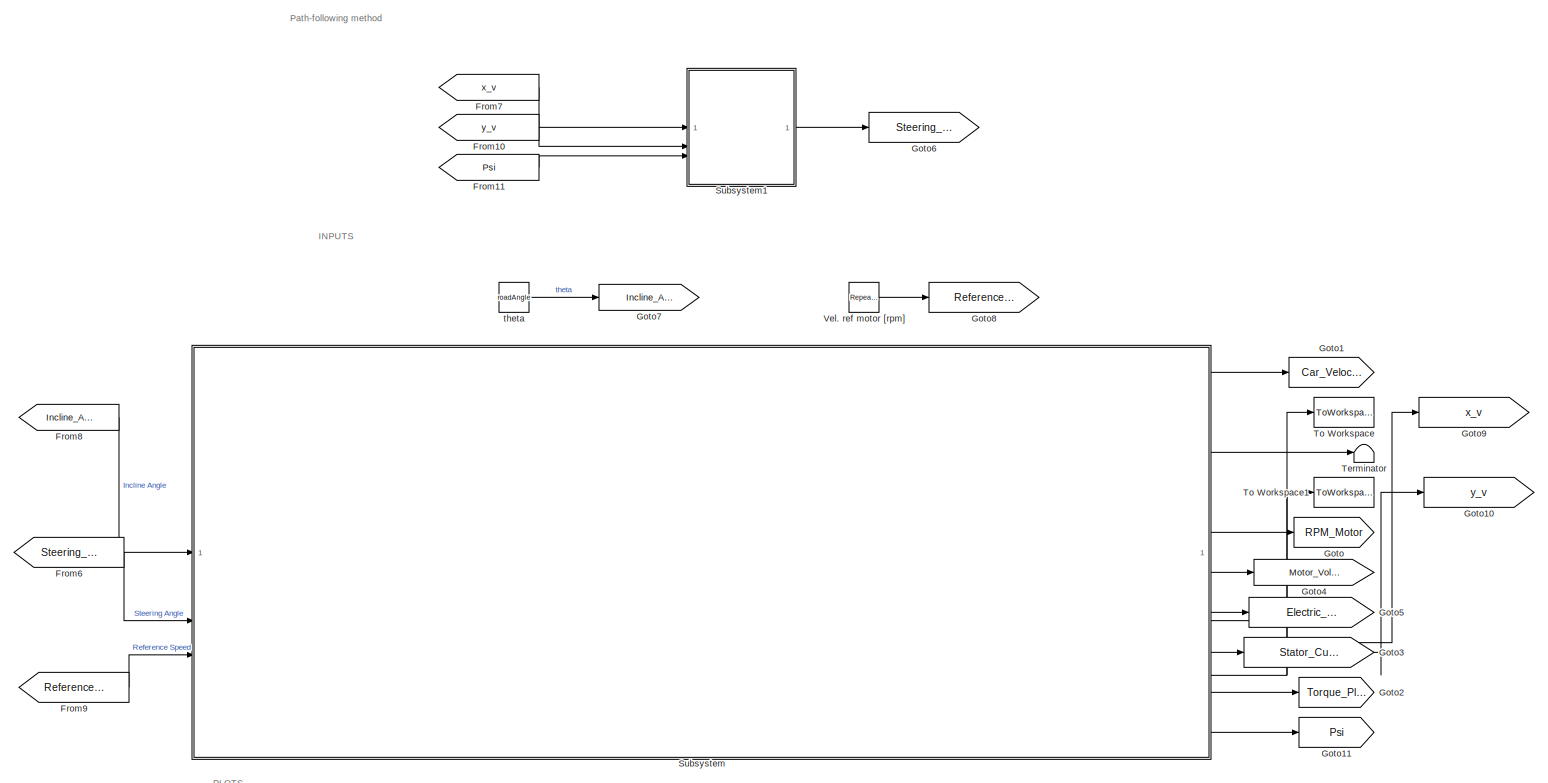
[diagram: root canvas - part 1/2, full width, middle band]
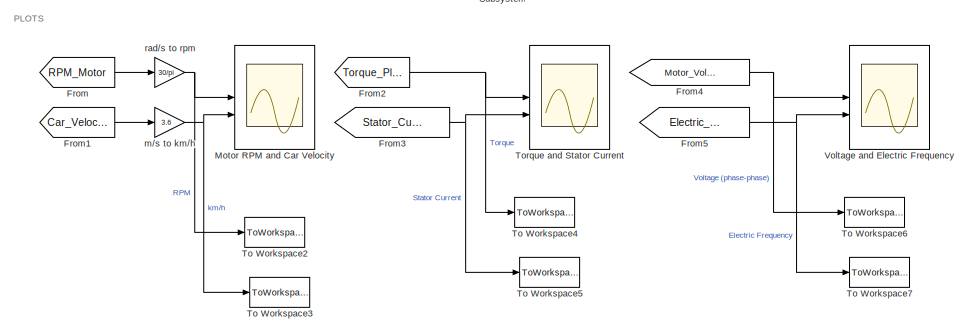
[diagram: root canvas - part 2/2, bottom center region]
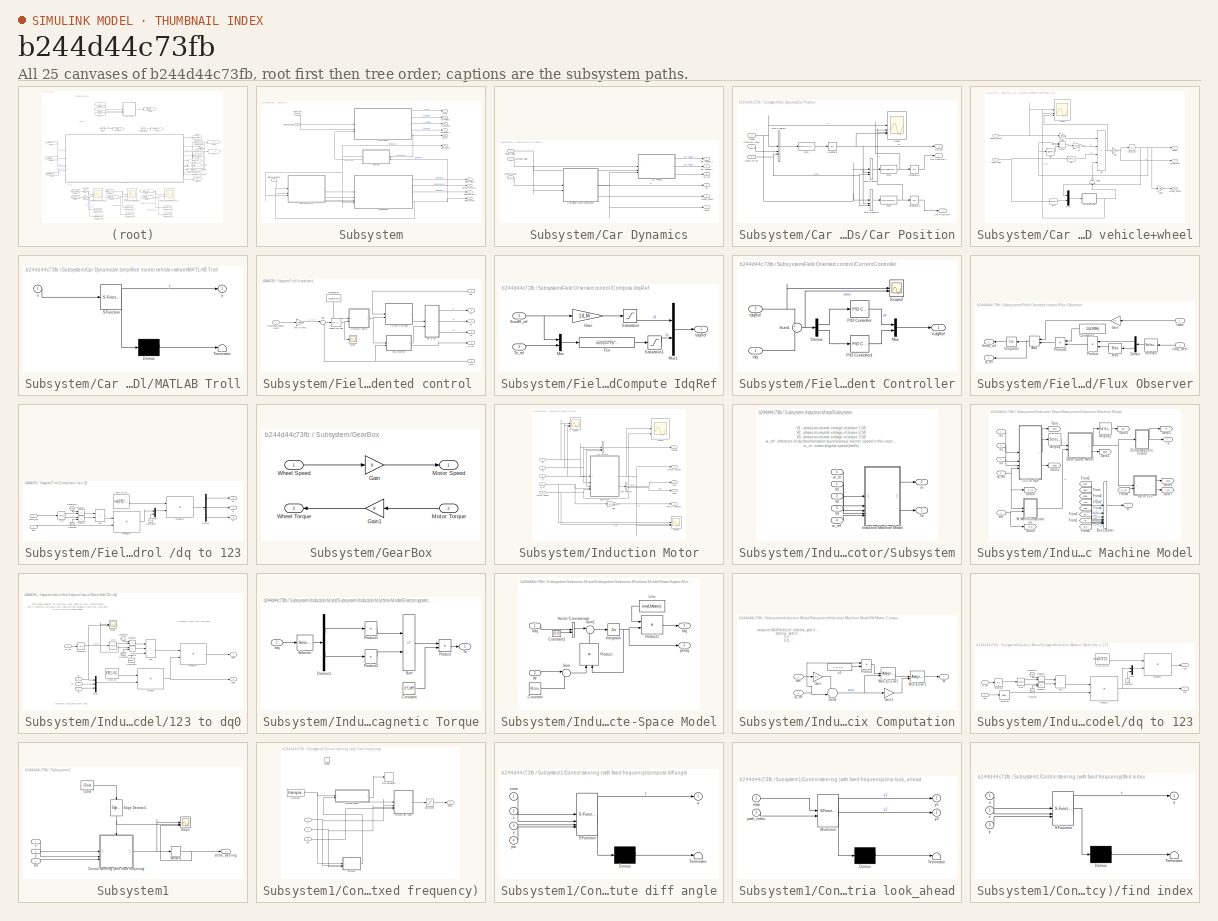
[diagram: thumbnail index - all 25 canvases of the model, root first then tree order]
MODEL slx_b244d44c73fb
KIND model
CONFIG AbsTol = auto
CONFIG EnableMultiTasking = off
CONFIG FixedStep = dt
CONFIG MaxStep = 1e-4
CONFIG MinStep = auto
CONFIG RelTol = 1e-4
CONFIG SampleTimeConstraint = Unconstrained
CONFIG SolverName = VariableStepAuto
CONFIG StartTime = 0.0
CONFIG StopTime = t_max
BLOCK [From] From
  GotoTag = RPM_Motor
BLOCK [From] From1
  GotoTag = Car_Velocity
BLOCK [From] From10
  GotoTag = y_v
BLOCK [From] From11
  GotoTag = Psi
BLOCK [From] From2
  GotoTag = Torque_Plot
BLOCK [From] From3
  GotoTag = Stator_Current_Plot
BLOCK [From] From4
  GotoTag = Motor_Voltage_Plot
BLOCK [From] From5
  GotoTag = Electric_Freq_Plot
BLOCK [From] From6
  GotoTag = Steering_Angle
BLOCK [From] From7
  GotoTag = x_v
BLOCK [From] From8
  GotoTag = Incline_Angle
BLOCK [From] From9
  GotoTag = Reference_Velocity
BLOCK [Goto] Goto
  GotoTag = RPM_Motor
BLOCK [Goto] Goto1
  GotoTag = Car_Velocity
BLOCK [Goto] Goto10
  GotoTag = y_v
BLOCK [Goto] Goto11
  GotoTag = Psi
BLOCK [Goto] Goto2
  GotoTag = Torque_Plot
BLOCK [Goto] Goto3
  GotoTag = Stator_Current_Plot
BLOCK [Goto] Goto4
  GotoTag = Motor_Voltage_Plot
BLOCK [Goto] Goto5
  GotoTag = Electric_Freq_Plot
BLOCK [Goto] Goto6
  GotoTag = Steering_Angle
BLOCK [Goto] Goto7
  GotoTag = Incline_Angle
BLOCK [Goto] Goto8
  GotoTag = Reference_Velocity
BLOCK [Goto] Goto9
  GotoTag = x_v
BLOCK [Scope] Motor RPM and Car Velocity
  Floating = off
  NumInputPorts = 2
  ScopeSpecificationString = Simulink.scopes.TimeScopeBlockCfg('CurrentConfiguration', extmgr.ConfigurationSet(extmgr.Configuration('Core','General UI',true),extmgr.Configuration('Core','Source UI',true),extmgr.Configuration('Sources','WiredSimulink',true,'DataLoggingVariableName','ScopeData3'),extmgr.Configuration('Visuals','Time Domain',true,'SerializedDisplays',{struct('MinYLimReal','-546.98609','MaxYLimReal','4922.87483',...<+2026ch>
BLOCK [SubSystem] Subsystem
BLOCK [Outport] Subsystem/Acceleration
  Port = 3
  VectorParamsAs1DForOutWhenUnconnected = off
BLOCK [SubSystem] Subsystem/Car Dynamics
BLOCK [SubSystem] Subsystem/Car Dynamics/Car Position
BLOCK [Outport] Subsystem/Car Dynamics/Car Position x
  Port = 2
  VectorParamsAs1DForOutWhenUnconnected = off
BLOCK [Outport] Subsystem/Car Dynamics/Car Position y
  Port = 4
  VectorParamsAs1DForOutWhenUnconnected = off
BLOCK [BusCreator] Subsystem/Car Dynamics/Car Position/Bus Creator1
  DisplayOption = bar
  InheritFromInputs = on
  Inputs = 3
BLOCK [BusCreator] Subsystem/Car Dynamics/Car Position/Bus Creator2
  DisplayOption = bar
  InheritFromInputs = on
  Inputs = 3
BLOCK [BusCreator] Subsystem/Car Dynamics/Car Position/Bus Creator3
  DisplayOption = bar
  InheritFromInputs = on
  Inputs = 3
BLOCK [Outport] Subsystem/Car Dynamics/Car Position/Car Position x
  VectorParamsAs1DForOutWhenUnconnected = off
BLOCK [Outport] Subsystem/Car Dynamics/Car Position/Car Position y
  Port = 2
  VectorParamsAs1DForOutWhenUnconnected = off
BLOCK [Outport] Subsystem/Car Dynamics/Car Position/Car psi
  Port = 3
  VectorParamsAs1DForOutWhenUnconnected = off
BLOCK [Fcn] Subsystem/Car Dynamics/Car Position/Fcn1
  Expr = u(1)/(lr+lf)*tan(u(2))*cos(u(3))
BLOCK [Fcn] Subsystem/Car Dynamics/Car Position/Fcn2
  Expr = u(1)*cos(u(2))*cos(u(3))
BLOCK [Fcn] Subsystem/Car Dynamics/Car Position/Fcn3
  Expr = -u(1)*sin(u(2))*cos(u(3))
BLOCK [Integrator] Subsystem/Car Dynamics/Car Position/Integrator
  InitialCondition = psi0
BLOCK [Integrator] Subsystem/Car Dynamics/Car Position/Integrator1
  InitialCondition = y0
BLOCK [Integrator] Subsystem/Car Dynamics/Car Position/Integrator2
  InitialCondition = x0
BLOCK [Inport] Subsystem/Car Dynamics/Car Position/Road Incline
  Port = 2
BLOCK [Scope] Subsystem/Car Dynamics/Car Position/Scope
  Floating = off
  NumInputPorts = 4
  ScopeSpecificationString = Simulink.scopes.TimeScopeBlockCfg('CurrentConfiguration', extmgr.ConfigurationSet(extmgr.Configuration('Core','General UI',true),extmgr.Configuration('Core','Source UI',true),extmgr.Configuration('Sources','WiredSimulink',true,'DataLoggingVariableName','ScopeData1'),extmgr.Configuration('Visuals','Time Domain',true,'SerializedDisplays',{struct('MinYLimReal','-0.99024','MaxYLimReal','8.91216','YLab...<+3424ch>
BLOCK [Inport] Subsystem/Car Dynamics/Car Position/Speed
  Port = 3
BLOCK [Inport] Subsystem/Car Dynamics/Car Position/Steering Angle
BLOCK [Outport] Subsystem/Car Dynamics/Car Psi
  Port = 6
  VectorParamsAs1DForOutWhenUnconnected = off
BLOCK [Inport] Subsystem/Car Dynamics/Road Incline
BLOCK [Outport] Subsystem/Car Dynamics/Speed
  VectorParamsAs1DForOutWhenUnconnected = off
BLOCK [Inport] Subsystem/Car Dynamics/Steering Angle
  Port = 2
BLOCK [Inport] Subsystem/Car Dynamics/Wheel Torque
  Port = 3
BLOCK [Outport] Subsystem/Car Dynamics/Wheels_Speed
  Port = 5
  VectorParamsAs1DForOutWhenUnconnected = off
BLOCK [Outport] Subsystem/Car Dynamics/ax
  Port = 3
  VectorParamsAs1DForOutWhenUnconnected = off
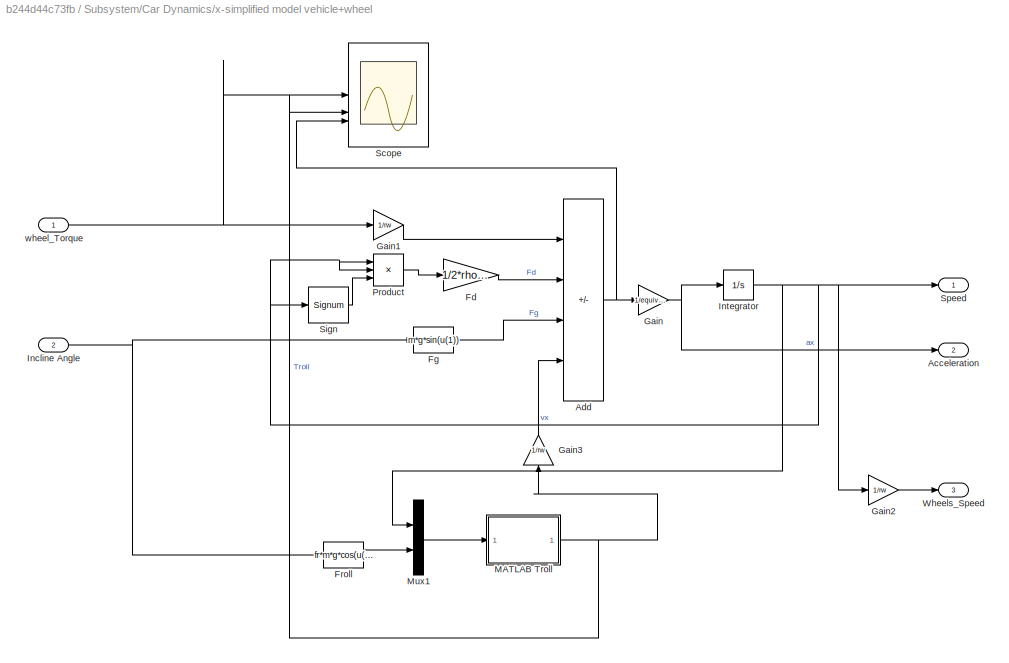
BLOCK [SubSystem] Subsystem/Car Dynamics/x-simplified model vehicle+wheel
BLOCK [Outport] Subsystem/Car Dynamics/x-simplified model vehicle+wheel/Acceleration
  Port = 2
  VectorParamsAs1DForOutWhenUnconnected = off
BLOCK [Sum] Subsystem/Car Dynamics/x-simplified model vehicle+wheel/Add
  IconShape = rectangular
  Inputs = +--+
BLOCK [Gain] Subsystem/Car Dynamics/x-simplified model vehicle+wheel/Fd
  Gain = 1/2*rho*Cd*A
BLOCK [Fcn] Subsystem/Car Dynamics/x-simplified model vehicle+wheel/Fg
  Expr = m*g*sin(u(1))
BLOCK [Fcn] Subsystem/Car Dynamics/x-simplified model vehicle+wheel/Froll
  Expr = fr*m*g*cos(u(1))
BLOCK [Gain] Subsystem/Car Dynamics/x-simplified model vehicle+wheel/Gain
  Gain = 1/equivalentMass
BLOCK [Gain] Subsystem/Car Dynamics/x-simplified model vehicle+wheel/Gain1
  Gain = 1/rw
BLOCK [Gain] Subsystem/Car Dynamics/x-simplified model vehicle+wheel/Gain2
  Gain = 1/rw
BLOCK [Gain] Subsystem/Car Dynamics/x-simplified model vehicle+wheel/Gain3
  Gain = 1/rw
  NameLocation = right
BLOCK [Inport] Subsystem/Car Dynamics/x-simplified model vehicle+wheel/Incline Angle
  Port = 2
BLOCK [Integrator] Subsystem/Car Dynamics/x-simplified model vehicle+wheel/Integrator
BLOCK [SubSystem] Subsystem/Car Dynamics/x-simplified model vehicle+wheel/MATLAB Troll
  ErrorFcn = Stateflow.Translate.translate
  PermitHierarchicalResolution = ExplicitOnly
  SFBlockType = MATLAB Function
  TreatAsAtomicUnit = on
BLOCK [Demux] Subsystem/Car Dynamics/x-simplified model vehicle+wheel/MATLAB Troll/ Demux 
  Outputs = 1
BLOCK [S-Function] Subsystem/Car Dynamics/x-simplified model vehicle+wheel/MATLAB Troll/ SFunction 
  EnableBusSupport = off
  FunctionName = sf_sfun
  PortCounts = [1 2]
  SFcnIsStateOwnerBlock = off
  SFunctionDeploymentMode = off
  Tag = Stateflow S-Function 1
BLOCK [Terminator] Subsystem/Car Dynamics/x-simplified model vehicle+wheel/MATLAB Troll/ Terminator 
BLOCK [Inport] Subsystem/Car Dynamics/x-simplified model vehicle+wheel/MATLAB Troll/u
BLOCK [Outport] Subsystem/Car Dynamics/x-simplified model vehicle+wheel/MATLAB Troll/y
  VectorParamsAs1DForOutWhenUnconnected = off
BLOCK [Mux] Subsystem/Car Dynamics/x-simplified model vehicle+wheel/Mux1
  DisplayOption = bar
  Inputs = 2
BLOCK [Product] Subsystem/Car Dynamics/x-simplified model vehicle+wheel/Product
  Inputs = 3
BLOCK [Scope] Subsystem/Car Dynamics/x-simplified model vehicle+wheel/Scope
  Floating = off
  NumInputPorts = 3
  ScopeSpecificationString = Simulink.scopes.TimeScopeBlockCfg('CurrentConfiguration', extmgr.ConfigurationSet(extmgr.Configuration('Core','General UI',true),extmgr.Configuration('Core','Source UI',true),extmgr.Configuration('Sources','WiredSimulink',true,'DataLoggingVariableName','ScopeData1'),extmgr.Configuration('Visuals','Time Domain',true,'SerializedDisplays',{struct('MinYLimReal','-1.00000','MaxYLimReal','1.00000','YLab...<+2758ch>
BLOCK [Signum] Subsystem/Car Dynamics/x-simplified model vehicle+wheel/Sign
BLOCK [Outport] Subsystem/Car Dynamics/x-simplified model vehicle+wheel/Speed
  VectorParamsAs1DForOutWhenUnconnected = off
BLOCK [Outport] Subsystem/Car Dynamics/x-simplified model vehicle+wheel/Wheels_Speed
  Port = 3
  VectorParamsAs1DForOutWhenUnconnected = off
BLOCK [Inport] Subsystem/Car Dynamics/x-simplified model vehicle+wheel/wheel_Torque
BLOCK [Outport] Subsystem/Car Position x
  Port = 2
  VectorParamsAs1DForOutWhenUnconnected = off
BLOCK [Outport] Subsystem/Car Position y
  Port = 4
  VectorParamsAs1DForOutWhenUnconnected = off
BLOCK [Outport] Subsystem/Car Psi
  Port = 10
  VectorParamsAs1DForOutWhenUnconnected = off
BLOCK [Outport] Subsystem/Electric Frequency
  Port = 7
  VectorParamsAs1DForOutWhenUnconnected = off
BLOCK [SubSystem] Subsystem/Field Oriented control 
BLOCK [SubSystem] Subsystem/Field Oriented control /Compute IdqRef
BLOCK [Fcn] Subsystem/Field Oriented control /Compute IdqRef/Fcn
  Expr = u(2)/(3/2*Pp*(LM/LR)*u(1))
BLOCK [Gain] Subsystem/Field Oriented control /Compute IdqRef/Gain
  Gain = 1/LM
BLOCK [Outport] Subsystem/Field Oriented control /Compute IdqRef/IdqRef
  VectorParamsAs1DForOutWhenUnconnected = off
BLOCK [Mux] Subsystem/Field Oriented control /Compute IdqRef/Mux
  DisplayOption = bar
  Inputs = 2
BLOCK [Mux] Subsystem/Field Oriented control /Compute IdqRef/Mux1
  DisplayOption = bar
  Inputs = 2
BLOCK [Saturate] Subsystem/Field Oriented control /Compute IdqRef/Saturation
  LowerLimit = -maxID
  UpperLimit = maxID
BLOCK [Saturate] Subsystem/Field Oriented control /Compute IdqRef/Saturation1
  LowerLimit = -maxIQ
  UpperLimit = maxIQ
BLOCK [Inport] Subsystem/Field Oriented control /Compute IdqRef/Te_ref
  Port = 2
BLOCK [Inport] Subsystem/Field Oriented control /Compute IdqRef/fluxdR_ref
BLOCK [SubSystem] Subsystem/Field Oriented control /Current Controller
BLOCK [Demux] Subsystem/Field Oriented control /Current Controller/Demux
  Outputs = 2
BLOCK [Inport] Subsystem/Field Oriented control /Current Controller/IdqRef
  Port = 2
BLOCK [Mux] Subsystem/Field Oriented control /Current Controller/Mux
  DisplayOption = bar
  Inputs = 2
BLOCK [Reference] Subsystem/Field Oriented control /Current Controller/PID Controller  REF=slpidlib/PID Controller
  SourceBlock = slpidlib/PID Controller
  SourceType = PID 1dof
BLOCK [Reference] Subsystem/Field Oriented control /Current Controller/PID Controller1  REF=slpidlib/PID Controller
  SourceBlock = slpidlib/PID Controller
  SourceType = PID 1dof
BLOCK [Scope] Subsystem/Field Oriented control /Current Controller/Scope2
  Floating = off
  NumInputPorts = 2
  ScopeSpecificationString = Simulink.scopes.TimeScopeBlockCfg('CurrentConfiguration', extmgr.ConfigurationSet(extmgr.Configuration('Core','General UI',true),extmgr.Configuration('Core','Source UI',true),extmgr.Configuration('Sources','WiredSimulink',true,'DataLoggingVariableName','ScopeData3'),extmgr.Configuration('Visuals','Time Domain',true,'SerializedDisplays',{struct('MinYLimReal','-723.57658','MaxYLimReal','3684.23451',...<+1566ch>
BLOCK [Sum] Subsystem/Field Oriented control /Current Controller/Sum1
  Inputs = +-
BLOCK [Outport] Subsystem/Field Oriented control /Current Controller/VdqRef
  VectorParamsAs1DForOutWhenUnconnected = off
BLOCK [Inport] Subsystem/Field Oriented control /Current Controller/idq
BLOCK [SubSystem] Subsystem/Field Oriented control /Flux Observer
BLOCK [Inport] Subsystem/Field Oriented control /Flux Observer/<Idq_Ref>
  NameLocation = top
BLOCK [Inport] Subsystem/Field Oriented control /Flux Observer/<wm>
  NameLocation = top
  Port = 2
BLOCK [Sum] Subsystem/Field Oriented control /Flux Observer/Add
  IconShape = rectangular
  Inputs = 2
  NameLocation = top
BLOCK [Bias] Subsystem/Field Oriented control /Flux Observer/Bias
  Bias = +eps
  NameLocation = top
  SaturateOnIntegerOverflow = off
BLOCK [Constant] Subsystem/Field Oriented control /Flux Observer/Constant1
  NameLocation = top
  Value = 1/(LR/Rr)
BLOCK [Demux] Subsystem/Field Oriented control /Flux Observer/Demux
  NameLocation = top
  Outputs = 2
BLOCK [Gain] Subsystem/Field Oriented control /Flux Observer/Gain
  Gain = Pp
BLOCK [Integrator] Subsystem/Field Oriented control /Flux Observer/Integrator
  NameLocation = top
BLOCK [Product] Subsystem/Field Oriented control /Flux Observer/Product
  Inputs = */
  NameLocation = top
BLOCK [Product] Subsystem/Field Oriented control /Flux Observer/Product1
  NameLocation = top
BLOCK [Selector] Subsystem/Field Oriented control /Flux Observer/Selector
  IndexOptions = Index vector (dialog)
  Indices = [2 1]
  InputPortWidth = 2
  NameLocation = top
  OutputSizes = 1
BLOCK [Outport] Subsystem/Field Oriented control /Flux Observer/theta_ref
  VectorParamsAs1DForOutWhenUnconnected = off
BLOCK [Outport] Subsystem/Field Oriented control /Flux Observer/w_ref
  Port = 2
  VectorParamsAs1DForOutWhenUnconnected = off
BLOCK [Inport] Subsystem/Field Oriented control /Reference_Speed [rpm]
BLOCK [Scope] Subsystem/Field Oriented control /Scope
  Floating = off
  NumInputPorts = 1
  ScopeSpecificationString = Simulink.scopes.TimeScopeBlockCfg('CurrentConfiguration', extmgr.ConfigurationSet(extmgr.Configuration('Core','General UI',true),extmgr.Configuration('Core','Source UI',true),extmgr.Configuration('Sources','WiredSimulink',true,'DataLoggingVariableName','ScopeData1'),extmgr.Configuration('Visuals','Time Domain',true,'SerializedDisplays',{struct('MinYLimReal','-8.125','MaxYLimReal','73.125','YLabelR...<+1411ch>
BLOCK [Sum] Subsystem/Field Oriented control /Sum
  Inputs = |+-
BLOCK [Outport] Subsystem/Field Oriented control /V1
  Port = 2
  VectorParamsAs1DForOutWhenUnconnected = off
BLOCK [Outport] Subsystem/Field Oriented control /V2
  Port = 3
  VectorParamsAs1DForOutWhenUnconnected = off
BLOCK [Outport] Subsystem/Field Oriented control /V3
  Port = 4
  VectorParamsAs1DForOutWhenUnconnected = off
BLOCK [SubSystem] Subsystem/Field Oriented control /dq to 123
BLOCK [Sum] Subsystem/Field Oriented control /dq to 123/Add
  IconShape = rectangular
BLOCK [Constant] Subsystem/Field Oriented control /dq to 123/Clark KCInv
  Value = inv(2/3*[1 -0.5 -0.5; 0 sqrt(3)/2 -sqrt(3)/2; 1/sqrt(2) 1/sqrt(2) 1/sqrt(2)])
BLOCK [Constant] Subsystem/Field Oriented control /dq to 123/Constant
  NameLocation = right
  Value = [1 0; 0 1]
BLOCK [Constant] Subsystem/Field Oriented control /dq to 123/Constant1
  NameLocation = left
  Value = [0 -1; 1 0]
BLOCK [Constant] Subsystem/Field Oriented control /dq to 123/Constant2
  NameLocation = right
  Value = 0
BLOCK [Trigonometry] Subsystem/Field Oriented control /dq to 123/Cos
  Operator = sincos
BLOCK [Demux] Subsystem/Field Oriented control /dq to 123/Demux
  Outputs = 3
BLOCK [Mux] Subsystem/Field Oriented control /dq to 123/Mux
  DisplayOption = bar
  Inputs = 2
BLOCK [Product] Subsystem/Field Oriented control /dq to 123/Product1
BLOCK [Product] Subsystem/Field Oriented control /dq to 123/Product2
BLOCK [Product] Subsystem/Field Oriented control /dq to 123/Product3
  Multiplication = Matrix(*)
BLOCK [Product] Subsystem/Field Oriented control /dq to 123/Product5
  Multiplication = Matrix(*)
BLOCK [Outport] Subsystem/Field Oriented control /dq to 123/V1
  VectorParamsAs1DForOutWhenUnconnected = off
BLOCK [Outport] Subsystem/Field Oriented control /dq to 123/V2
  Port = 2
  VectorParamsAs1DForOutWhenUnconnected = off
BLOCK [Outport] Subsystem/Field Oriented control /dq to 123/V3
  Port = 3
  VectorParamsAs1DForOutWhenUnconnected = off
BLOCK [Inport] Subsystem/Field Oriented control /dq to 123/Vdq
BLOCK [Inport] Subsystem/Field Oriented control /dq to 123/theta_ref
  Port = 2
BLOCK [Constant] Subsystem/Field Oriented control /fluxPeakRef
  NameLocation = right
  Value = maxID*LM
BLOCK [Inport] Subsystem/Field Oriented control /idq
  NameLocation = top
  Port = 2
BLOCK [Gain] Subsystem/Field Oriented control /rpm to rad//s
  Gain = 2*pi/60
BLOCK [Reference] Subsystem/Field Oriented control /speed controller  REF=slpidlib/PID Controller
  SourceBlock = slpidlib/PID Controller
  SourceType = PID 1dof
BLOCK [Outport] Subsystem/Field Oriented control /w_ref
  VectorParamsAs1DForOutWhenUnconnected = off
BLOCK [Inport] Subsystem/Field Oriented control /wm
  NameLocation = top
  Port = 3
BLOCK [SubSystem] Subsystem/GearBox
  NameLocation = top
BLOCK [Gain] Subsystem/GearBox/Gain
  Gain = 8
BLOCK [Gain] Subsystem/GearBox/Gain1
  Gain = 8
  NameLocation = top
BLOCK [Outport] Subsystem/GearBox/Motor Speed 
  VectorParamsAs1DForOutWhenUnconnected = off
BLOCK [Inport] Subsystem/GearBox/Motor Torque
  NameLocation = top
  Port = 2
BLOCK [Inport] Subsystem/GearBox/Wheel Speed
BLOCK [Outport] Subsystem/GearBox/Wheel Torque
  NameLocation = top
  Port = 2
  VectorParamsAs1DForOutWhenUnconnected = off
BLOCK [Inport] Subsystem/Incline Angle
BLOCK [SubSystem] Subsystem/Induction Motor
BLOCK [BusCreator] Subsystem/Induction Motor/Bus Creator
  DisplayOption = bar
  InheritFromInputs = on
  Inputs = 3
BLOCK [BusSelector] Subsystem/Induction Motor/Bus Selector
  OutputSignals = I123,Idq
BLOCK [Gain] Subsystem/Induction Motor/Gain
  Gain = 1/(2*pi)
BLOCK [Outport] Subsystem/Induction Motor/Iadc
  Port = 3
  VectorParamsAs1DForOutWhenUnconnected = off
BLOCK [Outport] Subsystem/Induction Motor/Idq0
  Port = 5
  VectorParamsAs1DForOutWhenUnconnected = off
BLOCK [Inport] Subsystem/Induction Motor/Motor Speed
  Port = 5
BLOCK [Outport] Subsystem/Induction Motor/Motor Torque
  Port = 4
  VectorParamsAs1DForOutWhenUnconnected = off
BLOCK [Scope] Subsystem/Induction Motor/Scope
  Floating = off
  NumInputPorts = 3
  ScopeSpecificationString = Simulink.scopes.TimeScopeBlockCfg('CurrentConfiguration', extmgr.ConfigurationSet(extmgr.Configuration('Core','General UI',true),extmgr.Configuration('Core','Source UI',true),extmgr.Configuration('Sources','WiredSimulink',true,'DataLoggingVariableName','ScopeData1'),extmgr.Configuration('Visuals','Time Domain',true,'SerializedDisplays',{struct('MinYLimReal','-412.5','MaxYLimReal','712.5','YLabelRe...<+1511ch>
BLOCK [Scope] Subsystem/Induction Motor/Scope1
  Floating = off
  NumInputPorts = 3
  ScopeSpecificationString = Simulink.scopes.TimeScopeBlockCfg('CurrentConfiguration', extmgr.ConfigurationSet(extmgr.Configuration('Core','General UI',true),extmgr.Configuration('Core','Source UI',true),extmgr.Configuration('Sources','WiredSimulink',true,'DataLoggingVariableName','ScopeData2'),extmgr.Configuration('Visuals','Time Domain',true,'SerializedDisplays',{struct('MinYLimReal','-37.4356','MaxYLimReal','34.53027','YLa...<+2788ch>
BLOCK [Scope] Subsystem/Induction Motor/Scope2
  Floating = off
  NumInputPorts = 3
  ScopeSpecificationString = Simulink.scopes.TimeScopeBlockCfg('CurrentConfiguration', extmgr.ConfigurationSet(extmgr.Configuration('Core','General UI',true),extmgr.Configuration('Core','Source UI',true),extmgr.Configuration('Sources','WiredSimulink',true,'DataLoggingVariableName','ScopeData1'),extmgr.Configuration('Visuals','Time Domain',true,'SerializedDisplays',{struct('MinYLimReal','-412.5','MaxYLimReal','712.5','YLabelRe...<+1511ch>
BLOCK [SubSystem] Subsystem/Induction Motor/Subsystem
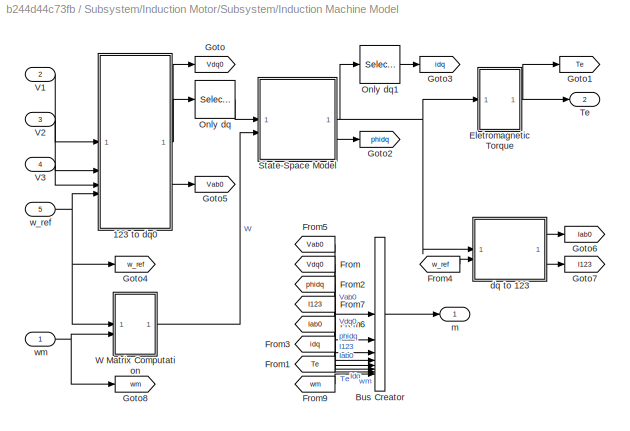
BLOCK [SubSystem] Subsystem/Induction Motor/Subsystem/Induction Machine Model
  NameLocation = top
BLOCK [SubSystem] Subsystem/Induction Motor/Subsystem/Induction Machine Model/123 to dq0
BLOCK [Sum] Subsystem/Induction Motor/Subsystem/Induction Machine Model/123 to dq0/Add
  IconShape = rectangular
  Inputs = +++
BLOCK [Constant] Subsystem/Induction Motor/Subsystem/Induction Machine Model/123 to dq0/Clark KC
  Value = 2/3*[1 -0.5 -0.5; 0 sqrt(3)/2 -sqrt(3)/2; 1/2 1/2 1/2]
BLOCK [Constant] Subsystem/Induction Motor/Subsystem/Induction Machine Model/123 to dq0/Constant
  NameLocation = right
  Value = [1 0 0; 0 1 0; 0 0 0]
BLOCK [Constant] Subsystem/Induction Motor/Subsystem/Induction Machine Model/123 to dq0/Constant1
  NameLocation = left
  Value = [0 1 0; -1 0 0; 0 0 0]
BLOCK [Constant] Subsystem/Induction Motor/Subsystem/Induction Machine Model/123 to dq0/Constant2
  NameLocation = right
  Value = [0 0 0; 0 0 0; 0 0 1]
BLOCK [Trigonometry] Subsystem/Induction Motor/Subsystem/Induction Machine Model/123 to dq0/Cos
  Operator = sincos
BLOCK [Integrator] Subsystem/Induction Motor/Subsystem/Induction Machine Model/123 to dq0/Integrator
BLOCK [Mux] Subsystem/Induction Motor/Subsystem/Induction Machine Model/123 to dq0/Mux1
  DisplayOption = bar
  Inputs = 3
BLOCK [Product] Subsystem/Induction Motor/Subsystem/Induction Machine Model/123 to dq0/Product
  Multiplication = Matrix(*)
BLOCK [Product] Subsystem/Induction Motor/Subsystem/Induction Machine Model/123 to dq0/Product1
BLOCK [Product] Subsystem/Induction Motor/Subsystem/Induction Machine Model/123 to dq0/Product2
BLOCK [Product] Subsystem/Induction Motor/Subsystem/Induction Machine Model/123 to dq0/Product3
  Multiplication = Matrix(*)
BLOCK [Scope] Subsystem/Induction Motor/Subsystem/Induction Machine Model/123 to dq0/Scope
  Floating = off
  NumInputPorts = 2
  ScopeSpecificationString = Simulink.scopes.TimeScopeBlockCfg('CurrentConfiguration', extmgr.ConfigurationSet(extmgr.Configuration('Core','General UI',true),extmgr.Configuration('Core','Source UI',true),extmgr.Configuration('Sources','WiredSimulink',true,'DataLoggingVariableName','ScopeData4'),extmgr.Configuration('Visuals','Time Domain',true,'SerializedDisplays',{struct('MinYLimReal','-76.99014','MaxYLimReal','76.91085','YL...<+1475ch>
BLOCK [Inport] Subsystem/Induction Motor/Subsystem/Induction Machine Model/123 to dq0/V1
BLOCK [Inport] Subsystem/Induction Motor/Subsystem/Induction Machine Model/123 to dq0/V2
  Port = 2
BLOCK [Inport] Subsystem/Induction Motor/Subsystem/Induction Machine Model/123 to dq0/V3
  Port = 3
BLOCK [Outport] Subsystem/Induction Motor/Subsystem/Induction Machine Model/123 to dq0/Vab0
  Port = 2
  VectorParamsAs1DForOutWhenUnconnected = off
BLOCK [Outport] Subsystem/Induction Motor/Subsystem/Induction Machine Model/123 to dq0/Vdq0
  VectorParamsAs1DForOutWhenUnconnected = off
BLOCK [Inport] Subsystem/Induction Motor/Subsystem/Induction Machine Model/123 to dq0/w_ref
  Port = 4
BLOCK [BusCreator] Subsystem/Induction Motor/Subsystem/Induction Machine Model/Bus Creator
  DisplayOption = bar
  InheritFromInputs = on
  Inputs = 8
BLOCK [SubSystem] Subsystem/Induction Motor/Subsystem/Induction Machine Model/Eletromagnetic Torque
BLOCK [Constant] Subsystem/Induction Motor/Subsystem/Induction Machine Model/Eletromagnetic Torque/Constant
  Value = 3/2*LM*Pp
BLOCK [Demux] Subsystem/Induction Motor/Subsystem/Induction Machine Model/Eletromagnetic Torque/Demux1
  Outputs = 2
BLOCK [Inport] Subsystem/Induction Motor/Subsystem/Induction Machine Model/Eletromagnetic Torque/Idq
BLOCK [Product] Subsystem/Induction Motor/Subsystem/Induction Machine Model/Eletromagnetic Torque/Product
BLOCK [Product] Subsystem/Induction Motor/Subsystem/Induction Machine Model/Eletromagnetic Torque/Product1
  Inputs = 1
BLOCK [Product] Subsystem/Induction Motor/Subsystem/Induction Machine Model/Eletromagnetic Torque/Product2
  Inputs = 1
BLOCK [Selector] Subsystem/Induction Motor/Subsystem/Induction Machine Model/Eletromagnetic Torque/Selector
  IndexOptions = Index vector (dialog)
  Indices = [2 3 1 4]
  InputPortWidth = 4
  OutputSizes = 1
BLOCK [Sum] Subsystem/Induction Motor/Subsystem/Induction Machine Model/Eletromagnetic Torque/Sum
  IconShape = rectangular
  Inputs = +-
BLOCK [Outport] Subsystem/Induction Motor/Subsystem/Induction Machine Model/Eletromagnetic Torque/Te
  VectorParamsAs1DForOutWhenUnconnected = off
BLOCK [From] Subsystem/Induction Motor/Subsystem/Induction Machine Model/From
  GotoTag = Vdq0
BLOCK [From] Subsystem/Induction Motor/Subsystem/Induction Machine Model/From1
  GotoTag = Te
BLOCK [From] Subsystem/Induction Motor/Subsystem/Induction Machine Model/From2
  GotoTag = phidq
BLOCK [From] Subsystem/Induction Motor/Subsystem/Induction Machine Model/From3
  GotoTag = idq
BLOCK [From] Subsystem/Induction Motor/Subsystem/Induction Machine Model/From4
  GotoTag = w_ref
BLOCK [From] Subsystem/Induction Motor/Subsystem/Induction Machine Model/From5
  GotoTag = Vab0
BLOCK [From] Subsystem/Induction Motor/Subsystem/Induction Machine Model/From6
  GotoTag = Iab0
BLOCK [From] Subsystem/Induction Motor/Subsystem/Induction Machine Model/From7
  GotoTag = I123
BLOCK [From] Subsystem/Induction Motor/Subsystem/Induction Machine Model/From9
  GotoTag = wm
BLOCK [Goto] Subsystem/Induction Motor/Subsystem/Induction Machine Model/Goto
  GotoTag = Vdq0
BLOCK [Goto] Subsystem/Induction Motor/Subsystem/Induction Machine Model/Goto1
  GotoTag = Te
BLOCK [Goto] Subsystem/Induction Motor/Subsystem/Induction Machine Model/Goto2
  GotoTag = phidq
BLOCK [Goto] Subsystem/Induction Motor/Subsystem/Induction Machine Model/Goto3
  GotoTag = idq
BLOCK [Goto] Subsystem/Induction Motor/Subsystem/Induction Machine Model/Goto4
  GotoTag = w_ref
BLOCK [Goto] Subsystem/Induction Motor/Subsystem/Induction Machine Model/Goto5
  GotoTag = Vab0
BLOCK [Goto] Subsystem/Induction Motor/Subsystem/Induction Machine Model/Goto6
  GotoTag = Iab0
BLOCK [Goto] Subsystem/Induction Motor/Subsystem/Induction Machine Model/Goto7
  GotoTag = I123
BLOCK [Goto] Subsystem/Induction Motor/Subsystem/Induction Machine Model/Goto8
  GotoTag = wm
BLOCK [Selector] Subsystem/Induction Motor/Subsystem/Induction Machine Model/Only dq
  IndexOptions = Index vector (dialog)
  Indices = [1 2]
  InputPortWidth = 3
  OutputSizes = 1
BLOCK [Selector] Subsystem/Induction Motor/Subsystem/Induction Machine Model/Only dq1
  IndexOptions = Index vector (dialog)
  Indices = [1 2]
  InputPortWidth = 4
  OutputSizes = 1
BLOCK [SubSystem] Subsystem/Induction Motor/Subsystem/Induction Machine Model/State-Space Model
BLOCK [Constant] Subsystem/Induction Motor/Subsystem/Induction Machine Model/State-Space Model/Constant
  Value = RLInv
  VectorParams1D = off
BLOCK [Constant] Subsystem/Induction Motor/Subsystem/Induction Machine Model/State-Space Model/Constant1
  Value = [0;0]
BLOCK [Outport] Subsystem/Induction Motor/Subsystem/Induction Machine Model/State-Space Model/Idq
  VectorParamsAs1DForOutWhenUnconnected = off
BLOCK [Integrator] Subsystem/Induction Motor/Subsystem/Induction Machine Model/State-Space Model/Integrator
  NameLocation = top
BLOCK [Constant] Subsystem/Induction Motor/Subsystem/Induction Machine Model/State-Space Model/Linv
  NameLocation = top
  Value = inv(LMatrix)
  VectorParams1D = off
BLOCK [Product] Subsystem/Induction Motor/Subsystem/Induction Machine Model/State-Space Model/Product
  Multiplication = Matrix(*)
  NameLocation = right
BLOCK [Product] Subsystem/Induction Motor/Subsystem/Induction Machine Model/State-Space Model/Product1
  Multiplication = Matrix(*)
BLOCK [Sum] Subsystem/Induction Motor/Subsystem/Induction Machine Model/State-Space Model/Sum
  Inputs = |--
BLOCK [Sum] Subsystem/Induction Motor/Subsystem/Induction Machine Model/State-Space Model/Sum1
  Inputs = |++
  NameLocation = top
BLOCK [Inport] Subsystem/Induction Motor/Subsystem/Induction Machine Model/State-Space Model/Vdq
BLOCK [Concatenate] Subsystem/Induction Motor/Subsystem/Induction Machine Model/State-Space Model/Vector Concatenate
BLOCK [Inport] Subsystem/Induction Motor/Subsystem/Induction Machine Model/State-Space Model/W
  Port = 2
BLOCK [Outport] Subsystem/Induction Motor/Subsystem/Induction Machine Model/State-Space Model/phidq
  Port = 2
  VectorParamsAs1DForOutWhenUnconnected = off
BLOCK [Outport] Subsystem/Induction Motor/Subsystem/Induction Machine Model/Te
  Port = 2
  VectorParamsAs1DForOutWhenUnconnected = off
BLOCK [Inport] Subsystem/Induction Motor/Subsystem/Induction Machine Model/V1
  Port = 2
BLOCK [Inport] Subsystem/Induction Motor/Subsystem/Induction Machine Model/V2
  Port = 3
BLOCK [Inport] Subsystem/Induction Motor/Subsystem/Induction Machine Model/V3
  Port = 4
BLOCK [SubSystem] Subsystem/Induction Motor/Subsystem/Induction Machine Model/W Matrix Computation
BLOCK [Gain] Subsystem/Induction Motor/Subsystem/Induction Machine Model/W Matrix Computation/Gain
  Gain = Pp
BLOCK [Gain] Subsystem/Induction Motor/Subsystem/Induction Machine Model/W Matrix Computation/Gain1
  Gain = -1
  OutDataTypeStr = Inherit: Same as input
  ParamDataTypeStr = Inherit: Same as input
  SaturateOnIntegerOverflow = on
BLOCK [Product] Subsystem/Induction Motor/Subsystem/Induction Machine Model/W Matrix Computation/Product
BLOCK [Sum] Subsystem/Induction Motor/Subsystem/Induction Machine Model/W Matrix Computation/Sum2
  InputSameDT = on
  Inputs = -+|
  OutDataTypeStr = Inherit: Same as first input
  SaturateOnIntegerOverflow = on
BLOCK [Outport] Subsystem/Induction Motor/Subsystem/Induction Machine Model/W Matrix Computation/W
  InitialOutput = 0
  VectorParamsAs1DForOutWhenUnconnected = off
BLOCK [Assignment] Subsystem/Induction Motor/Subsystem/Induction Machine Model/W Matrix Computation/W(3,4)=wr-1
  IndexOptions = Index vector (dialog),Index vector (dialog)
  Indices = 3,4
  NumberOfDimensions = 2
  OutputSizes = 1,1
BLOCK [Assignment] Subsystem/Induction Motor/Subsystem/Induction Machine Model/W Matrix Computation/W(4,3)=1-wr1
  IndexOptions = Index vector (dialog),Index vector (dialog)
  Indices = 4,3
  NumberOfDimensions = 2
  OutputSizes = 1,1
BLOCK [Constant] Subsystem/Induction Motor/Subsystem/Induction Machine Model/W Matrix Computation/u1
  Value = [ 0 -1  0  0; 1  0  0  0;  0  0  0  0;  0  0  0  0]
BLOCK [Inport] Subsystem/Induction Motor/Subsystem/Induction Machine Model/W Matrix Computation/w_ref
BLOCK [Inport] Subsystem/Induction Motor/Subsystem/Induction Machine Model/W Matrix Computation/wm
  Port = 2
BLOCK [SubSystem] Subsystem/Induction Motor/Subsystem/Induction Machine Model/dq to 123
BLOCK [Sum] Subsystem/Induction Motor/Subsystem/Induction Machine Model/dq to 123/Add
  IconShape = rectangular
BLOCK [Constant] Subsystem/Induction Motor/Subsystem/Induction Machine Model/dq to 123/Clark KCInv
  Value = inv(2/3*[1 -0.5 -0.5; 0 sqrt(3)/2 -sqrt(3)/2; 1/sqrt(2) 1/sqrt(2) 1/sqrt(2)])
BLOCK [Constant] Subsystem/Induction Motor/Subsystem/Induction Machine Model/dq to 123/Constant
  NameLocation = right
  Value = [1 0; 0 1]
BLOCK [Constant] Subsystem/Induction Motor/Subsystem/Induction Machine Model/dq to 123/Constant1
  NameLocation = left
  Value = [0 -1; 1 0]
BLOCK [Constant] Subsystem/Induction Motor/Subsystem/Induction Machine Model/dq to 123/Constant2
  NameLocation = right
  Value = 0
BLOCK [Trigonometry] Subsystem/Induction Motor/Subsystem/Induction Machine Model/dq to 123/Cos
  Operator = sincos
BLOCK [Outport] Subsystem/Induction Motor/Subsystem/Induction Machine Model/dq to 123/I123
  Port = 2
  VectorParamsAs1DForOutWhenUnconnected = off
BLOCK [Outport] Subsystem/Induction Motor/Subsystem/Induction Machine Model/dq to 123/Iab
  VectorParamsAs1DForOutWhenUnconnected = off
BLOCK [Inport] Subsystem/Induction Motor/Subsystem/Induction Machine Model/dq to 123/Idq
BLOCK [Integrator] Subsystem/Induction Motor/Subsystem/Induction Machine Model/dq to 123/Integrator
BLOCK [Mux] Subsystem/Induction Motor/Subsystem/Induction Machine Model/dq to 123/Mux
  DisplayOption = bar
  Inputs = 2
BLOCK [Product] Subsystem/Induction Motor/Subsystem/Induction Machine Model/dq to 123/Product1
BLOCK [Product] Subsystem/Induction Motor/Subsystem/Induction Machine Model/dq to 123/Product2
BLOCK [Product] Subsystem/Induction Motor/Subsystem/Induction Machine Model/dq to 123/Product3
  Multiplication = Matrix(*)
BLOCK [Product] Subsystem/Induction Motor/Subsystem/Induction Machine Model/dq to 123/Product5
  Multiplication = Matrix(*)
BLOCK [Selector] Subsystem/Induction Motor/Subsystem/Induction Machine Model/dq to 123/Selector
  IndexOptions = Index vector (dialog)
  Indices = [1 2]
  InputPortWidth = 4
  OutputSizes = 1
BLOCK [Inport] Subsystem/Induction Motor/Subsystem/Induction Machine Model/dq to 123/w_ref
  Port = 2
BLOCK [Outport] Subsystem/Induction Motor/Subsystem/Induction Machine Model/m
  VectorParamsAs1DForOutWhenUnconnected = off
BLOCK [Inport] Subsystem/Induction Motor/Subsystem/Induction Machine Model/w_ref
  Port = 5
BLOCK [Inport] Subsystem/Induction Motor/Subsystem/Induction Machine Model/wm
BLOCK [Outport] Subsystem/Induction Motor/Subsystem/Te
  VectorParamsAs1DForOutWhenUnconnected = off
BLOCK [Inport] Subsystem/Induction Motor/Subsystem/V1
BLOCK [Inport] Subsystem/Induction Motor/Subsystem/V2
  Port = 2
BLOCK [Inport] Subsystem/Induction Motor/Subsystem/V3
  Port = 3
BLOCK [Outport] Subsystem/Induction Motor/Subsystem/m
  Port = 2
  VectorParamsAs1DForOutWhenUnconnected = off
BLOCK [Inport] Subsystem/Induction Motor/Subsystem/w_m
  Port = 5
BLOCK [Inport] Subsystem/Induction Motor/Subsystem/w_ref
  Port = 4
BLOCK [Inport] Subsystem/Induction Motor/V1
  Port = 2
BLOCK [Inport] Subsystem/Induction Motor/V2
  Port = 3
BLOCK [Inport] Subsystem/Induction Motor/V3
  Port = 4
BLOCK [Outport] Subsystem/Induction Motor/eletric frequency
  Port = 2
  VectorParamsAs1DForOutWhenUnconnected = off
BLOCK [Outport] Subsystem/Induction Motor/voltage
  VectorParamsAs1DForOutWhenUnconnected = off
BLOCK [Inport] Subsystem/Induction Motor/w_ref
BLOCK [Outport] Subsystem/Motor Speed
  Port = 5
  VectorParamsAs1DForOutWhenUnconnected = off
BLOCK [Outport] Subsystem/Motor Torque
  Port = 9
  VectorParamsAs1DForOutWhenUnconnected = off
BLOCK [Inport] Subsystem/Reference Speed
  Port = 3
BLOCK [Outport] Subsystem/Speed
  VectorParamsAs1DForOutWhenUnconnected = off
BLOCK [Outport] Subsystem/Stator Current
  Port = 8
  VectorParamsAs1DForOutWhenUnconnected = off
BLOCK [Outport] Subsystem/Stator Voltage
  Port = 6
  VectorParamsAs1DForOutWhenUnconnected = off
BLOCK [Inport] Subsystem/Steering Angle
  Port = 2
BLOCK [SubSystem] Subsystem1
BLOCK [Reference] Subsystem1/Clock  REF=simulink_extras/Flip Flops/Clock
  SourceBlock = simulink_extras/Flip Flops/Clock
  SourceType = Digital clock
BLOCK [SubSystem] Subsystem1/Control steering (with fixed frequency)
  TreatAsAtomicUnit = on
BLOCK [Constant] Subsystem1/Control steering (with fixed frequency)/Constant1
  Value = Steering.map_points
  VectorParams1D = off
BLOCK [EnablePort] Subsystem1/Control steering (with fixed frequency)/Enable
BLOCK [Saturate] Subsystem1/Control steering (with fixed frequency)/Saturation
  LowerLimit = -28*pi/180
  UpperLimit = 28*pi/180
BLOCK [Stop] Subsystem1/Control steering (with fixed frequency)/Stop Simulation
BLOCK [SubSystem] Subsystem1/Control steering (with fixed frequency)/compute diff angle
  ErrorFcn = Stateflow.Translate.translate
  PermitHierarchicalResolution = ExplicitOnly
  SFBlockType = MATLAB Function
  TreatAsAtomicUnit = on
BLOCK [Demux] Subsystem1/Control steering (with fixed frequency)/compute diff angle/ Demux 
  Outputs = 1
BLOCK [S-Function] Subsystem1/Control steering (with fixed frequency)/compute diff angle/ SFunction 
  EnableBusSupport = off
  FunctionName = sf_sfun
  PortCounts = [4 2]
  SFcnIsStateOwnerBlock = off
  SFunctionDeploymentMode = off
  Tag = Stateflow S-Function 3
BLOCK [Terminator] Subsystem1/Control steering (with fixed frequency)/compute diff angle/ Terminator 
BLOCK [Inport] Subsystem1/Control steering (with fixed frequency)/compute diff angle/psi
  Port = 4
BLOCK [Inport] Subsystem1/Control steering (with fixed frequency)/compute diff angle/x
  Port = 2
BLOCK [Outport] Subsystem1/Control steering (with fixed frequency)/compute diff angle/y
  VectorParamsAs1DForOutWhenUnconnected = off
BLOCK [Inport] Subsystem1/Control steering (with fixed frequency)/compute diff angle/y 
  Port = 3
BLOCK [Inport] Subsystem1/Control steering (with fixed frequency)/compute diff angle/zone
BLOCK [SubSystem] Subsystem1/Control steering (with fixed frequency)/cria look_ahead
  ErrorFcn = Stateflow.Translate.translate
  PermitHierarchicalResolution = ExplicitOnly
  SFBlockType = MATLAB Function
  TreatAsAtomicUnit = on
BLOCK [Demux] Subsystem1/Control steering (with fixed frequency)/cria look_ahead/ Demux 
  Outputs = 1
BLOCK [S-Function] Subsystem1/Control steering (with fixed frequency)/cria look_ahead/ SFunction 
  EnableBusSupport = off
  FunctionName = sf_sfun
  PortCounts = [2 3]
  SFcnIsStateOwnerBlock = off
  SFunctionDeploymentMode = off
  Tag = Stateflow S-Function 2
BLOCK [Terminator] Subsystem1/Control steering (with fixed frequency)/cria look_ahead/ Terminator 
BLOCK [Inport] Subsystem1/Control steering (with fixed frequency)/cria look_ahead/map
BLOCK [Inport] Subsystem1/Control steering (with fixed frequency)/cria look_ahead/path_index
  Port = 2
BLOCK [Outport] Subsystem1/Control steering (with fixed frequency)/cria look_ahead/y1
  VectorParamsAs1DForOutWhenUnconnected = off
BLOCK [Outport] Subsystem1/Control steering (with fixed frequency)/cria look_ahead/y2
  Port = 2
  VectorParamsAs1DForOutWhenUnconnected = off
BLOCK [Outport] Subsystem1/Control steering (with fixed frequency)/delta
  VectorParamsAs1DForOutWhenUnconnected = off
BLOCK [SubSystem] Subsystem1/Control steering (with fixed frequency)/find index
  ErrorFcn = Stateflow.Translate.translate
  PermitHierarchicalResolution = ExplicitOnly
  SFBlockType = MATLAB Function
  TreatAsAtomicUnit = on
BLOCK [Demux] Subsystem1/Control steering (with fixed frequency)/find index/ Demux 
  Outputs = 1
BLOCK [S-Function] Subsystem1/Control steering (with fixed frequency)/find index/ SFunction 
  EnableBusSupport = off
  FunctionName = sf_sfun
  PortCounts = [3 2]
  SFcnIsStateOwnerBlock = off
  SFunctionDeploymentMode = off
  Tag = Stateflow S-Function 4
BLOCK [Terminator] Subsystem1/Control steering (with fixed frequency)/find index/ Terminator 
BLOCK [Inport] Subsystem1/Control steering (with fixed frequency)/find index/u
BLOCK [Inport] Subsystem1/Control steering (with fixed frequency)/find index/x
  Port = 2
BLOCK [Outport] Subsystem1/Control steering (with fixed frequency)/find index/y
  VectorParamsAs1DForOutWhenUnconnected = off
BLOCK [Inport] Subsystem1/Control steering (with fixed frequency)/find index/y 
  Port = 3
BLOCK [Inport] Subsystem1/Control steering (with fixed frequency)/psi
  Port = 3
BLOCK [Inport] Subsystem1/Control steering (with fixed frequency)/x
BLOCK [Inport] Subsystem1/Control steering (with fixed frequency)/y
  Port = 2
BLOCK [Reference] Subsystem1/Edge Detector1  REF=spsEdgeDetectorLib/Edge Detector
  LibrarySourceBlock = sps_lib/Control/Edge Detector
  NameLocation = left
  SourceBlock = spsEdgeDetectorLib/Edge Detector
  SourceType = Edge Detector
BLOCK [Memory] Subsystem1/Memory
BLOCK [Scope] Subsystem1/Scope
  Floating = off
  NumInputPorts = 3
  ScopeSpecificationString = Simulink.scopes.TimeScopeBlockCfg('CurrentConfiguration', extmgr.ConfigurationSet(extmgr.Configuration('Core','General UI',true),extmgr.Configuration('Core','Source UI',true),extmgr.Configuration('Sources','WiredSimulink',true,'DataLoggingVariableName','ScopeData1'),extmgr.Configuration('Visuals','Time Domain',true,'SerializedDisplays',{struct('MinYLimReal','-0.61087','MaxYLimReal','0.61087','YLab...<+2779ch>
BLOCK [Outport] Subsystem1/delta_steering
  VectorParamsAs1DForOutWhenUnconnected = off
BLOCK [Inport] Subsystem1/psi
  Port = 3
BLOCK [Inport] Subsystem1/x
BLOCK [Inport] Subsystem1/y
  Port = 2
BLOCK [Terminator] Terminator
BLOCK [ToWorkspace] To Workspace
  FixptAsFi = on
  MaxDataPoints = inf
  SampleTime = t_sample
  SaveFormat = Timeseries
  VariableName = x_v0
BLOCK [ToWorkspace] To Workspace1
  FixptAsFi = on
  MaxDataPoints = inf
  SampleTime = t_sample
  SaveFormat = Timeseries
  VariableName = y_v0
BLOCK [ToWorkspace] To Workspace2
  FixptAsFi = on
  MaxDataPoints = inf
  SampleTime = t_sample
  SaveFormat = Timeseries
  VariableName = rpm_motor
BLOCK [ToWorkspace] To Workspace3
  FixptAsFi = on
  MaxDataPoints = inf
  SampleTime = t_sample
  SaveFormat = Timeseries
  VariableName = car_speed
BLOCK [ToWorkspace] To Workspace4
  FixptAsFi = on
  MaxDataPoints = inf
  SampleTime = t_sample
  SaveFormat = Timeseries
  VariableName = Torque_motor
BLOCK [ToWorkspace] To Workspace5
  FixptAsFi = on
  MaxDataPoints = inf
  SampleTime = -1
  SaveFormat = Timeseries
  VariableName = Current_motor
BLOCK [ToWorkspace] To Workspace6
  FixptAsFi = on
  MaxDataPoints = inf
  SampleTime = -1
  SaveFormat = Timeseries
  VariableName = Voltage_motor
BLOCK [ToWorkspace] To Workspace7
  FixptAsFi = on
  MaxDataPoints = inf
  SampleTime = -1
  SaveFormat = Timeseries
  VariableName = freq_motor
BLOCK [Scope] Torque and Stator Current
  Floating = off
  NumInputPorts = 2
  ScopeSpecificationString = Simulink.scopes.TimeScopeBlockCfg('CurrentConfiguration', extmgr.ConfigurationSet(extmgr.Configuration('Core','General UI',true),extmgr.Configuration('Core','Source UI',true),extmgr.Configuration('Sources','WiredSimulink',true,'DataLoggingVariableName','ScopeData1'),extmgr.Configuration('Visuals','Time Domain',true,'SerializedDisplays',{struct('MinYLimReal','-4.13072','MaxYLimReal','37.17652','YLa...<+2222ch>
BLOCK [Reference] Vel. ref motor [rpm]  REF=simulink/Sources/Repeating
Sequence
  SourceBlock = simulink/Sources/Repeating\nSequence
  SourceType = Repeating table
BLOCK [Scope] Voltage and Electric Frequency
  Floating = off
  NumInputPorts = 2
  ScopeSpecificationString = Simulink.scopes.TimeScopeBlockCfg('CurrentConfiguration', extmgr.ConfigurationSet(extmgr.Configuration('Core','General UI',true),extmgr.Configuration('Core','Source UI',true),extmgr.Configuration('Sources','WiredSimulink',true,'DataLoggingVariableName','ScopeData2'),extmgr.Configuration('Visuals','Time Domain',true,'SerializedDisplays',{struct('MinYLimReal','-412.77348','MaxYLimReal','712.53039','...<+2139ch>
BLOCK [Gain] m//s to km//h
  Gain = 3.6
BLOCK [Gain] rad//s to rpm
  Gain = 30/pi
BLOCK [Constant] theta
  Value = roadAngle
ANNOTATION (root): INPUTS
ANNOTATION (root): PLOTS
ANNOTATION (root): Path-following method
ANNOTATION Subsystem/Induction Motor/Subsystem: V1 - phase-to-neutral voltage of phase 1 [V] V2 - phase-to-neutral voltage of phase 2 [V] V3 - phase-to-neutral voltage of phase 3 [V] w_ref - reference of dq transformation (synchornous electric speed in this case = 2*pi*f) [rad/s] w_m - motor angular speed [rad/s]
ANNOTATION Subsystem/Induction Motor/Subsystem/Induction Machine Model/123 to dq0: Computes Ualfa_beta from Uabc
ANNOTATION Subsystem/Induction Motor/Subsystem/Induction Machine Model/123 to dq0: Computes Udq0 from Ualfa_beta
ANNOTATION Subsystem/Induction Motor/Subsystem/Induction Machine Model/123 to dq0: This module calculates the Udq from Uabc, using the Clark transformation. First it computed Ualfa_beta from Uabc and then calculates Udq0 from Ualfa_beta . W_ref is the synchronous speed
ANNOTATION Subsystem/Induction Motor/Subsystem/Induction Machine Model/W Matrix Computation: computes W(dPsi/dt)=[0 -d(theta_s)/dt 0 0; d(theta_s)/dt 0 0 0; 0 0 0 -d(theta_r)/dt; 0 0 d(theta_r)/dt 0;]
LINE From10:1 -> Subsystem1:2
LINE From11:1 -> Subsystem1:3
LINE From1:1 -> m//s to km//h:1
NET From2:1 -> To Workspace4:1, Torque and Stator Current:1
NET From3:1 -> To Workspace5:1, Torque and Stator Current:2
NET From4:1 -> To Workspace6:1, Voltage and Electric Frequency:1
NET From5:1 -> To Workspace7:1, Voltage and Electric Frequency:2
LINE From6:1 -> Subsystem:2
LINE From7:1 -> Subsystem1:1
LINE From8:1 -> Subsystem:1
LINE From9:1 -> Subsystem:3
LINE From:1 -> rad//s to rpm:1
LINE Subsystem/Car Dynamics/Car Position/Bus Creator1:1 -> Subsystem/Car Dynamics/Car Position/Fcn1:1
LINE Subsystem/Car Dynamics/Car Position/Bus Creator2:1 -> Subsystem/Car Dynamics/Car Position/Fcn2:1
LINE Subsystem/Car Dynamics/Car Position/Bus Creator3:1 -> Subsystem/Car Dynamics/Car Position/Fcn3:1
LINE Subsystem/Car Dynamics/Car Position/Fcn1:1 -> Subsystem/Car Dynamics/Car Position/Integrator:1
NET Subsystem/Car Dynamics/Car Position/Fcn2:1 -> Subsystem/Car Dynamics/Car Position/Integrator1:1, Subsystem/Car Dynamics/Car Position/Scope:2
NET Subsystem/Car Dynamics/Car Position/Fcn3:1 -> Subsystem/Car Dynamics/Car Position/Integrator2:1, Subsystem/Car Dynamics/Car Position/Scope:3
LINE Subsystem/Car Dynamics/Car Position/Integrator1:1 -> Subsystem/Car Dynamics/Car Position/Car Position y:1
LINE Subsystem/Car Dynamics/Car Position/Integrator2:1 -> Subsystem/Car Dynamics/Car Position/Car Position x:1
NET Subsystem/Car Dynamics/Car Position/Integrator:1 -> Subsystem/Car Dynamics/Car Position/Bus Creator2:2, Subsystem/Car Dynamics/Car Position/Bus Creator3:2, Subsystem/Car Dynamics/Car Position/Car psi:1, Subsystem/Car Dynamics/Car Position/Scope:4
NET Subsystem/Car Dynamics/Car Position/Road Incline:1 -> Subsystem/Car Dynamics/Car Position/Bus Creator1:3, Subsystem/Car Dynamics/Car Position/Bus Creator2:3, Subsystem/Car Dynamics/Car Position/Bus Creator3:3
NET Subsystem/Car Dynamics/Car Position/Speed:1 -> Subsystem/Car Dynamics/Car Position/Bus Creator1:1, Subsystem/Car Dynamics/Car Position/Bus Creator2:1, Subsystem/Car Dynamics/Car Position/Bus Creator3:1, Subsystem/Car Dynamics/Car Position/Scope:1
LINE Subsystem/Car Dynamics/Car Position/Steering Angle:1 -> Subsystem/Car Dynamics/Car Position/Bus Creator1:2
LINE Subsystem/Car Dynamics/Car Position:1 -> Subsystem/Car Dynamics/Car Position x:1
LINE Subsystem/Car Dynamics/Car Position:2 -> Subsystem/Car Dynamics/Car Position y:1
LINE Subsystem/Car Dynamics/Car Position:3 -> Subsystem/Car Dynamics/Car Psi:1
NET Subsystem/Car Dynamics/Road Incline:1 -> Subsystem/Car Dynamics/Car Position:2, Subsystem/Car Dynamics/x-simplified model vehicle+wheel:2
LINE Subsystem/Car Dynamics/Steering Angle:1 -> Subsystem/Car Dynamics/Car Position:1
LINE Subsystem/Car Dynamics/Wheel Torque:1 -> Subsystem/Car Dynamics/x-simplified model vehicle+wheel:1
NET Subsystem/Car Dynamics/x-simplified model vehicle+wheel/Add:1 -> Subsystem/Car Dynamics/x-simplified model vehicle+wheel/Gain:1, Subsystem/Car Dynamics/x-simplified model vehicle+wheel/Scope:3
LINE Subsystem/Car Dynamics/x-simplified model vehicle+wheel/Fd:1 -> Subsystem/Car Dynamics/x-simplified model vehicle+wheel/Add:2
LINE Subsystem/Car Dynamics/x-simplified model vehicle+wheel/Fg:1 -> Subsystem/Car Dynamics/x-simplified model vehicle+wheel/Add:3
LINE Subsystem/Car Dynamics/x-simplified model vehicle+wheel/Froll:1 -> Subsystem/Car Dynamics/x-simplified model vehicle+wheel/Mux1:2
LINE Subsystem/Car Dynamics/x-simplified model vehicle+wheel/Gain1:1 -> Subsystem/Car Dynamics/x-simplified model vehicle+wheel/Add:1
LINE Subsystem/Car Dynamics/x-simplified model vehicle+wheel/Gain2:1 -> Subsystem/Car Dynamics/x-simplified model vehicle+wheel/Wheels_Speed:1
LINE Subsystem/Car Dynamics/x-simplified model vehicle+wheel/Gain3:1 -> Subsystem/Car Dynamics/x-simplified model vehicle+wheel/Add:4
NET Subsystem/Car Dynamics/x-simplified model vehicle+wheel/Gain:1 -> Subsystem/Car Dynamics/x-simplified model vehicle+wheel/Acceleration:1, Subsystem/Car Dynamics/x-simplified model vehicle+wheel/Integrator:1
NET Subsystem/Car Dynamics/x-simplified model vehicle+wheel/Incline Angle:1 -> Subsystem/Car Dynamics/x-simplified model vehicle+wheel/Fg:1, Subsystem/Car Dynamics/x-simplified model vehicle+wheel/Froll:1
NET Subsystem/Car Dynamics/x-simplified model vehicle+wheel/Integrator:1 -> Subsystem/Car Dynamics/x-simplified model vehicle+wheel/Gain2:1, Subsystem/Car Dynamics/x-simplified model vehicle+wheel/Mux1:1, Subsystem/Car Dynamics/x-simplified model vehicle+wheel/Product:1, Subsystem/Car Dynamics/x-simplified model vehicle+wheel/Product:2, Subsystem/Car Dynamics/x-simplified model vehicle+wheel/Sign:1, Subsystem/Car Dynamics/x-simplified model vehicle+wheel/Speed:1
NET Subsystem/Car Dynamics/x-simplified model vehicle+wheel/MATLAB Troll:1 -> Subsystem/Car Dynamics/x-simplified model vehicle+wheel/Gain3:1, Subsystem/Car Dynamics/x-simplified model vehicle+wheel/Scope:2
LINE Subsystem/Car Dynamics/x-simplified model vehicle+wheel/Mux1:1 -> Subsystem/Car Dynamics/x-simplified model vehicle+wheel/MATLAB Troll:1
LINE Subsystem/Car Dynamics/x-simplified model vehicle+wheel/Product:1 -> Subsystem/Car Dynamics/x-simplified model vehicle+wheel/Fd:1
LINE Subsystem/Car Dynamics/x-simplified model vehicle+wheel/Sign:1 -> Subsystem/Car Dynamics/x-simplified model vehicle+wheel/Product:3
NET Subsystem/Car Dynamics/x-simplified model vehicle+wheel/wheel_Torque:1 -> Subsystem/Car Dynamics/x-simplified model vehicle+wheel/Gain1:1, Subsystem/Car Dynamics/x-simplified model vehicle+wheel/Scope:1
NET Subsystem/Car Dynamics/x-simplified model vehicle+wheel:1 -> Subsystem/Car Dynamics/Car Position:3, Subsystem/Car Dynamics/Speed:1
LINE Subsystem/Car Dynamics/x-simplified model vehicle+wheel:2 -> Subsystem/Car Dynamics/ax:1
LINE Subsystem/Car Dynamics/x-simplified model vehicle+wheel:3 -> Subsystem/Car Dynamics/Wheels_Speed:1
LINE Subsystem/Car Dynamics:1 -> Subsystem/Speed:1
LINE Subsystem/Car Dynamics:2 -> Subsystem/Car Position x:1
LINE Subsystem/Car Dynamics:3 -> Subsystem/Acceleration:1
LINE Subsystem/Car Dynamics:4 -> Subsystem/Car Position y:1
LINE Subsystem/Car Dynamics:5 -> Subsystem/GearBox:1
LINE Subsystem/Car Dynamics:6 -> Subsystem/Car Psi:1
LINE Subsystem/Field Oriented control /Compute IdqRef/Fcn:1 -> Subsystem/Field Oriented control /Compute IdqRef/Saturation1:1
LINE Subsystem/Field Oriented control /Compute IdqRef/Gain:1 -> Subsystem/Field Oriented control /Compute IdqRef/Saturation:1
LINE Subsystem/Field Oriented control /Compute IdqRef/Mux1:1 -> Subsystem/Field Oriented control /Compute IdqRef/IdqRef:1
LINE Subsystem/Field Oriented control /Compute IdqRef/Mux:1 -> Subsystem/Field Oriented control /Compute IdqRef/Fcn:1
LINE Subsystem/Field Oriented control /Compute IdqRef/Saturation1:1 -> Subsystem/Field Oriented control /Compute IdqRef/Mux1:2
LINE Subsystem/Field Oriented control /Compute IdqRef/Saturation:1 -> Subsystem/Field Oriented control /Compute IdqRef/Mux1:1
LINE Subsystem/Field Oriented control /Compute IdqRef/Te_ref:1 -> Subsystem/Field Oriented control /Compute IdqRef/Mux:2
NET Subsystem/Field Oriented control /Compute IdqRef/fluxdR_ref:1 -> Subsystem/Field Oriented control /Compute IdqRef/Gain:1, Subsystem/Field Oriented control /Compute IdqRef/Mux:1
NET Subsystem/Field Oriented control /Compute IdqRef:1 -> Subsystem/Field Oriented control /Current Controller:2, Subsystem/Field Oriented control /Flux Observer:1
LINE Subsystem/Field Oriented control /Current Controller/Demux:1 -> Subsystem/Field Oriented control /Current Controller/PID Controller:1
LINE Subsystem/Field Oriented control /Current Controller/Demux:2 -> Subsystem/Field Oriented control /Current Controller/PID Controller1:1
NET Subsystem/Field Oriented control /Current Controller/IdqRef:1 -> Subsystem/Field Oriented control /Current Controller/Scope2:1, Subsystem/Field Oriented control /Current Controller/Sum1:1
LINE Subsystem/Field Oriented control /Current Controller/Mux:1 -> Subsystem/Field Oriented control /Current Controller/VdqRef:1
LINE Subsystem/Field Oriented control /Current Controller/PID Controller1:1 -> Subsystem/Field Oriented control /Current Controller/Mux:2
LINE Subsystem/Field Oriented control /Current Controller/PID Controller:1 -> Subsystem/Field Oriented control /Current Controller/Mux:1
NET Subsystem/Field Oriented control /Current Controller/Sum1:1 -> Subsystem/Field Oriented control /Current Controller/Demux:1, Subsystem/Field Oriented control /Current Controller/Scope2:2
LINE Subsystem/Field Oriented control /Current Controller/idq:1 -> Subsystem/Field Oriented control /Current Controller/Sum1:2
LINE Subsystem/Field Oriented control /Current Controller:1 -> Subsystem/Field Oriented control /dq to 123:1
LINE Subsystem/Field Oriented control /Flux Observer/<Idq_Ref>:1 -> Subsystem/Field Oriented control /Flux Observer/Selector:1
LINE Subsystem/Field Oriented control /Flux Observer/<wm>:1 -> Subsystem/Field Oriented control /Flux Observer/Gain:1
NET Subsystem/Field Oriented control /Flux Observer/Add:1 -> Subsystem/Field Oriented control /Flux Observer/Integrator:1, Subsystem/Field Oriented control /Flux Observer/w_ref:1
LINE Subsystem/Field Oriented control /Flux Observer/Bias:1 -> Subsystem/Field Oriented control /Flux Observer/Product:2
LINE Subsystem/Field Oriented control /Flux Observer/Constant1:1 -> Subsystem/Field Oriented control /Flux Observer/Product1:1
LINE Subsystem/Field Oriented control /Flux Observer/Demux:1 -> Subsystem/Field Oriented control /Flux Observer/Product:1
LINE Subsystem/Field Oriented control /Flux Observer/Demux:2 -> Subsystem/Field Oriented control /Flux Observer/Bias:1
LINE Subsystem/Field Oriented control /Flux Observer/Gain:1 -> Subsystem/Field Oriented control /Flux Observer/Add:1
LINE Subsystem/Field Oriented control /Flux Observer/Integrator:1 -> Subsystem/Field Oriented control /Flux Observer/theta_ref:1
LINE Subsystem/Field Oriented control /Flux Observer/Product1:1 -> Subsystem/Field Oriented control /Flux Observer/Add:2
LINE Subsystem/Field Oriented control /Flux Observer/Product:1 -> Subsystem/Field Oriented control /Flux Observer/Product1:2
LINE Subsystem/Field Oriented control /Flux Observer/Selector:1 -> Subsystem/Field Oriented control /Flux Observer/Demux:1
LINE Subsystem/Field Oriented control /Flux Observer:1 -> Subsystem/Field Oriented control /dq to 123:2
LINE Subsystem/Field Oriented control /Flux Observer:2 -> Subsystem/Field Oriented control /w_ref:1
LINE Subsystem/Field Oriented control /Reference_Speed [rpm]:1 -> Subsystem/Field Oriented control /rpm to rad//s:1
LINE Subsystem/Field Oriented control /Sum:1 -> Subsystem/Field Oriented control /speed controller:1
LINE Subsystem/Field Oriented control /dq to 123/Add:1 -> Subsystem/Field Oriented control /dq to 123/Product3:1
LINE Subsystem/Field Oriented control /dq to 123/Clark KCInv:1 -> Subsystem/Field Oriented control /dq to 123/Product5:1
LINE Subsystem/Field Oriented control /dq to 123/Constant1:1 -> Subsystem/Field Oriented control /dq to 123/Product1:1
LINE Subsystem/Field Oriented control /dq to 123/Constant2:1 -> Subsystem/Field Oriented control /dq to 123/Mux:2
LINE Subsystem/Field Oriented control /dq to 123/Constant:1 -> Subsystem/Field Oriented control /dq to 123/Product2:2
LINE Subsystem/Field Oriented control /dq to 123/Cos:1 -> Subsystem/Field Oriented control /dq to 123/Product1:2
LINE Subsystem/Field Oriented control /dq to 123/Cos:2 -> Subsystem/Field Oriented control /dq to 123/Product2:1
LINE Subsystem/Field Oriented control /dq to 123/Demux:1 -> Subsystem/Field Oriented control /dq to 123/V1:1
LINE Subsystem/Field Oriented control /dq to 123/Demux:2 -> Subsystem/Field Oriented control /dq to 123/V2:1
LINE Subsystem/Field Oriented control /dq to 123/Demux:3 -> Subsystem/Field Oriented control /dq to 123/V3:1
LINE Subsystem/Field Oriented control /dq to 123/Mux:1 -> Subsystem/Field Oriented control /dq to 123/Product5:2
LINE Subsystem/Field Oriented control /dq to 123/Product1:1 -> Subsystem/Field Oriented control /dq to 123/Add:1
LINE Subsystem/Field Oriented control /dq to 123/Product2:1 -> Subsystem/Field Oriented control /dq to 123/Add:2
LINE Subsystem/Field Oriented control /dq to 123/Product3:1 -> Subsystem/Field Oriented control /dq to 123/Mux:1
LINE Subsystem/Field Oriented control /dq to 123/Product5:1 -> Subsystem/Field Oriented control /dq to 123/Demux:1
LINE Subsystem/Field Oriented control /dq to 123/Vdq:1 -> Subsystem/Field Oriented control /dq to 123/Product3:2
LINE Subsystem/Field Oriented control /dq to 123/theta_ref:1 -> Subsystem/Field Oriented control /dq to 123/Cos:1
LINE Subsystem/Field Oriented control /dq to 123:1 -> Subsystem/Field Oriented control /V1:1
LINE Subsystem/Field Oriented control /dq to 123:2 -> Subsystem/Field Oriented control /V2:1
LINE Subsystem/Field Oriented control /dq to 123:3 -> Subsystem/Field Oriented control /V3:1
LINE Subsystem/Field Oriented control /fluxPeakRef:1 -> Subsystem/Field Oriented control /Compute IdqRef:1
LINE Subsystem/Field Oriented control /idq:1 -> Subsystem/Field Oriented control /Current Controller:1
LINE Subsystem/Field Oriented control /rpm to rad//s:1 -> Subsystem/Field Oriented control /Sum:1
NET Subsystem/Field Oriented control /speed controller:1 -> Subsystem/Field Oriented control /Compute IdqRef:2, Subsystem/Field Oriented control /Scope:1
NET Subsystem/Field Oriented control /wm:1 -> Subsystem/Field Oriented control /Flux Observer:2, Subsystem/Field Oriented control /Sum:2
LINE Subsystem/Field Oriented control :1 -> Subsystem/Induction Motor:1
LINE Subsystem/Field Oriented control :2 -> Subsystem/Induction Motor:2
LINE Subsystem/Field Oriented control :3 -> Subsystem/Induction Motor:3
LINE Subsystem/Field Oriented control :4 -> Subsystem/Induction Motor:4
LINE Subsystem/GearBox/Gain1:1 -> Subsystem/GearBox/Wheel Torque:1
LINE Subsystem/GearBox/Gain:1 -> Subsystem/GearBox/Motor Speed :1
LINE Subsystem/GearBox/Motor Torque:1 -> Subsystem/GearBox/Gain1:1
LINE Subsystem/GearBox/Wheel Speed:1 -> Subsystem/GearBox/Gain:1
NET Subsystem/GearBox:1 -> Subsystem/Field Oriented control :3, Subsystem/Induction Motor:5, Subsystem/Motor Speed:1
LINE Subsystem/GearBox:2 -> Subsystem/Car Dynamics:3
LINE Subsystem/Incline Angle:1 -> Subsystem/Car Dynamics:1
LINE Subsystem/Induction Motor/Bus Creator:1 -> Subsystem/Induction Motor/voltage:1
LINE Subsystem/Induction Motor/Bus Selector:1 -> Subsystem/Induction Motor/Iadc:1
LINE Subsystem/Induction Motor/Bus Selector:2 -> Subsystem/Induction Motor/Idq0:1
LINE Subsystem/Induction Motor/Gain:1 -> Subsystem/Induction Motor/eletric frequency:1
NET Subsystem/Induction Motor/Motor Speed:1 -> Subsystem/Induction Motor/Scope1:3, Subsystem/Induction Motor/Scope2:2, Subsystem/Induction Motor/Subsystem:5
LINE Subsystem/Induction Motor/Subsystem/Induction Machine Model/123 to dq0/Add:1 -> Subsystem/Induction Motor/Subsystem/Induction Machine Model/123 to dq0/Product3:1
LINE Subsystem/Induction Motor/Subsystem/Induction Machine Model/123 to dq0/Clark KC:1 -> Subsystem/Induction Motor/Subsystem/Induction Machine Model/123 to dq0/Product:1
LINE Subsystem/Induction Motor/Subsystem/Induction Machine Model/123 to dq0/Constant1:1 -> Subsystem/Induction Motor/Subsystem/Induction Machine Model/123 to dq0/Product1:1
LINE Subsystem/Induction Motor/Subsystem/Induction Machine Model/123 to dq0/Constant2:1 -> Subsystem/Induction Motor/Subsystem/Induction Machine Model/123 to dq0/Add:3
LINE Subsystem/Induction Motor/Subsystem/Induction Machine Model/123 to dq0/Constant:1 -> Subsystem/Induction Motor/Subsystem/Induction Machine Model/123 to dq0/Product2:2
LINE Subsystem/Induction Motor/Subsystem/Induction Machine Model/123 to dq0/Cos:1 -> Subsystem/Induction Motor/Subsystem/Induction Machine Model/123 to dq0/Product1:2
NET Subsystem/Induction Motor/Subsystem/Induction Machine Model/123 to dq0/Cos:2 -> Subsystem/Induction Motor/Subsystem/Induction Machine Model/123 to dq0/Product2:1, Subsystem/Induction Motor/Subsystem/Induction Machine Model/123 to dq0/Scope:1
LINE Subsystem/Induction Motor/Subsystem/Induction Machine Model/123 to dq0/Integrator:1 -> Subsystem/Induction Motor/Subsystem/Induction Machine Model/123 to dq0/Cos:1
LINE Subsystem/Induction Motor/Subsystem/Induction Machine Model/123 to dq0/Mux1:1 -> Subsystem/Induction Motor/Subsystem/Induction Machine Model/123 to dq0/Product:2
LINE Subsystem/Induction Motor/Subsystem/Induction Machine Model/123 to dq0/Product1:1 -> Subsystem/Induction Motor/Subsystem/Induction Machine Model/123 to dq0/Add:1
LINE Subsystem/Induction Motor/Subsystem/Induction Machine Model/123 to dq0/Product2:1 -> Subsystem/Induction Motor/Subsystem/Induction Machine Model/123 to dq0/Add:2
LINE Subsystem/Induction Motor/Subsystem/Induction Machine Model/123 to dq0/Product3:1 -> Subsystem/Induction Motor/Subsystem/Induction Machine Model/123 to dq0/Vdq0:1
NET Subsystem/Induction Motor/Subsystem/Induction Machine Model/123 to dq0/Product:1 -> Subsystem/Induction Motor/Subsystem/Induction Machine Model/123 to dq0/Product3:2, Subsystem/Induction Motor/Subsystem/Induction Machine Model/123 to dq0/Vab0:1
NET Subsystem/Induction Motor/Subsystem/Induction Machine Model/123 to dq0/V1:1 -> Subsystem/Induction Motor/Subsystem/Induction Machine Model/123 to dq0/Mux1:1, Subsystem/Induction Motor/Subsystem/Induction Machine Model/123 to dq0/Scope:2
LINE Subsystem/Induction Motor/Subsystem/Induction Machine Model/123 to dq0/V2:1 -> Subsystem/Induction Motor/Subsystem/Induction Machine Model/123 to dq0/Mux1:2
LINE Subsystem/Induction Motor/Subsystem/Induction Machine Model/123 to dq0/V3:1 -> Subsystem/Induction Motor/Subsystem/Induction Machine Model/123 to dq0/Mux1:3
LINE Subsystem/Induction Motor/Subsystem/Induction Machine Model/123 to dq0/w_ref:1 -> Subsystem/Induction Motor/Subsystem/Induction Machine Model/123 to dq0/Integrator:1
NET Subsystem/Induction Motor/Subsystem/Induction Machine Model/123 to dq0:1 -> Subsystem/Induction Motor/Subsystem/Induction Machine Model/Goto:1, Subsystem/Induction Motor/Subsystem/Induction Machine Model/Only dq:1
LINE Subsystem/Induction Motor/Subsystem/Induction Machine Model/123 to dq0:2 -> Subsystem/Induction Motor/Subsystem/Induction Machine Model/Goto5:1
LINE Subsystem/Induction Motor/Subsystem/Induction Machine Model/Bus Creator:1 -> Subsystem/Induction Motor/Subsystem/Induction Machine Model/m:1
LINE Subsystem/Induction Motor/Subsystem/Induction Machine Model/Eletromagnetic Torque/Constant:1 -> Subsystem/Induction Motor/Subsystem/Induction Machine Model/Eletromagnetic Torque/Product:2
LINE Subsystem/Induction Motor/Subsystem/Induction Machine Model/Eletromagnetic Torque/Demux1:1 -> Subsystem/Induction Motor/Subsystem/Induction Machine Model/Eletromagnetic Torque/Product1:1
LINE Subsystem/Induction Motor/Subsystem/Induction Machine Model/Eletromagnetic Torque/Demux1:2 -> Subsystem/Induction Motor/Subsystem/Induction Machine Model/Eletromagnetic Torque/Product2:1
LINE Subsystem/Induction Motor/Subsystem/Induction Machine Model/Eletromagnetic Torque/Idq:1 -> Subsystem/Induction Motor/Subsystem/Induction Machine Model/Eletromagnetic Torque/Selector:1
LINE Subsystem/Induction Motor/Subsystem/Induction Machine Model/Eletromagnetic Torque/Product1:1 -> Subsystem/Induction Motor/Subsystem/Induction Machine Model/Eletromagnetic Torque/Sum:1
LINE Subsystem/Induction Motor/Subsystem/Induction Machine Model/Eletromagnetic Torque/Product2:1 -> Subsystem/Induction Motor/Subsystem/Induction Machine Model/Eletromagnetic Torque/Sum:2
LINE Subsystem/Induction Motor/Subsystem/Induction Machine Model/Eletromagnetic Torque/Product:1 -> Subsystem/Induction Motor/Subsystem/Induction Machine Model/Eletromagnetic Torque/Te:1
LINE Subsystem/Induction Motor/Subsystem/Induction Machine Model/Eletromagnetic Torque/Selector:1 -> Subsystem/Induction Motor/Subsystem/Induction Machine Model/Eletromagnetic Torque/Demux1:1
LINE Subsystem/Induction Motor/Subsystem/Induction Machine Model/Eletromagnetic Torque/Sum:1 -> Subsystem/Induction Motor/Subsystem/Induction Machine Model/Eletromagnetic Torque/Product:1
NET Subsystem/Induction Motor/Subsystem/Induction Machine Model/Eletromagnetic Torque:1 -> Subsystem/Induction Motor/Subsystem/Induction Machine Model/Goto1:1, Subsystem/Induction Motor/Subsystem/Induction Machine Model/Te:1
LINE Subsystem/Induction Motor/Subsystem/Induction Machine Model/From1:1 -> Subsystem/Induction Motor/Subsystem/Induction Machine Model/Bus Creator:7
LINE Subsystem/Induction Motor/Subsystem/Induction Machine Model/From2:1 -> Subsystem/Induction Motor/Subsystem/Induction Machine Model/Bus Creator:3
LINE Subsystem/Induction Motor/Subsystem/Induction Machine Model/From3:1 -> Subsystem/Induction Motor/Subsystem/Induction Machine Model/Bus Creator:6
LINE Subsystem/Induction Motor/Subsystem/Induction Machine Model/From4:1 -> Subsystem/Induction Motor/Subsystem/Induction Machine Model/dq to 123:2
LINE Subsystem/Induction Motor/Subsystem/Induction Machine Model/From5:1 -> Subsystem/Induction Motor/Subsystem/Induction Machine Model/Bus Creator:1
LINE Subsystem/Induction Motor/Subsystem/Induction Machine Model/From6:1 -> Subsystem/Induction Motor/Subsystem/Induction Machine Model/Bus Creator:5
LINE Subsystem/Induction Motor/Subsystem/Induction Machine Model/From7:1 -> Subsystem/Induction Motor/Subsystem/Induction Machine Model/Bus Creator:4
LINE Subsystem/Induction Motor/Subsystem/Induction Machine Model/From9:1 -> Subsystem/Induction Motor/Subsystem/Induction Machine Model/Bus Creator:8
LINE Subsystem/Induction Motor/Subsystem/Induction Machine Model/From:1 -> Subsystem/Induction Motor/Subsystem/Induction Machine Model/Bus Creator:2
LINE Subsystem/Induction Motor/Subsystem/Induction Machine Model/Only dq1:1 -> Subsystem/Induction Motor/Subsystem/Induction Machine Model/Goto3:1
LINE Subsystem/Induction Motor/Subsystem/Induction Machine Model/Only dq:1 -> Subsystem/Induction Motor/Subsystem/Induction Machine Model/State-Space Model:1
LINE Subsystem/Induction Motor/Subsystem/Induction Machine Model/State-Space Model/Constant1:1 -> Subsystem/Induction Motor/Subsystem/Induction Machine Model/State-Space Model/Vector Concatenate:2
LINE Subsystem/Induction Motor/Subsystem/Induction Machine Model/State-Space Model/Constant:1 -> Subsystem/Induction Motor/Subsystem/Induction Machine Model/State-Space Model/Sum:2
NET Subsystem/Induction Motor/Subsystem/Induction Machine Model/State-Space Model/Integrator:1 -> Subsystem/Induction Motor/Subsystem/Induction Machine Model/State-Space Model/Product1:2, Subsystem/Induction Motor/Subsystem/Induction Machine Model/State-Space Model/Product:2, Subsystem/Induction Motor/Subsystem/Induction Machine Model/State-Space Model/phidq:1
LINE Subsystem/Induction Motor/Subsystem/Induction Machine Model/State-Space Model/Linv:1 -> Subsystem/Induction Motor/Subsystem/Induction Machine Model/State-Space Model/Product1:1
LINE Subsystem/Induction Motor/Subsystem/Induction Machine Model/State-Space Model/Product1:1 -> Subsystem/Induction Motor/Subsystem/Induction Machine Model/State-Space Model/Idq:1
LINE Subsystem/Induction Motor/Subsystem/Induction Machine Model/State-Space Model/Product:1 -> Subsystem/Induction Motor/Subsystem/Induction Machine Model/State-Space Model/Sum1:2
LINE Subsystem/Induction Motor/Subsystem/Induction Machine Model/State-Space Model/Sum1:1 -> Subsystem/Induction Motor/Subsystem/Induction Machine Model/State-Space Model/Integrator:1
LINE Subsystem/Induction Motor/Subsystem/Induction Machine Model/State-Space Model/Sum:1 -> Subsystem/Induction Motor/Subsystem/Induction Machine Model/State-Space Model/Product:1
LINE Subsystem/Induction Motor/Subsystem/Induction Machine Model/State-Space Model/Vdq:1 -> Subsystem/Induction Motor/Subsystem/Induction Machine Model/State-Space Model/Vector Concatenate:1
LINE Subsystem/Induction Motor/Subsystem/Induction Machine Model/State-Space Model/Vector Concatenate:1 -> Subsystem/Induction Motor/Subsystem/Induction Machine Model/State-Space Model/Sum1:1
LINE Subsystem/Induction Motor/Subsystem/Induction Machine Model/State-Space Model/W:1 -> Subsystem/Induction Motor/Subsystem/Induction Machine Model/State-Space Model/Sum:1
NET Subsystem/Induction Motor/Subsystem/Induction Machine Model/State-Space Model:1 -> Subsystem/Induction Motor/Subsystem/Induction Machine Model/Eletromagnetic Torque:1, Subsystem/Induction Motor/Subsystem/Induction Machine Model/Only dq1:1, Subsystem/Induction Motor/Subsystem/Induction Machine Model/dq to 123:1
LINE Subsystem/Induction Motor/Subsystem/Induction Machine Model/State-Space Model:2 -> Subsystem/Induction Motor/Subsystem/Induction Machine Model/Goto2:1
LINE Subsystem/Induction Motor/Subsystem/Induction Machine Model/V1:1 -> Subsystem/Induction Motor/Subsystem/Induction Machine Model/123 to dq0:1
LINE Subsystem/Induction Motor/Subsystem/Induction Machine Model/V2:1 -> Subsystem/Induction Motor/Subsystem/Induction Machine Model/123 to dq0:2
LINE Subsystem/Induction Motor/Subsystem/Induction Machine Model/V3:1 -> Subsystem/Induction Motor/Subsystem/Induction Machine Model/123 to dq0:3
LINE Subsystem/Induction Motor/Subsystem/Induction Machine Model/W Matrix Computation/Gain1:1 -> Subsystem/Induction Motor/Subsystem/Induction Machine Model/W Matrix Computation/W(3,4)=wr-1:2
LINE Subsystem/Induction Motor/Subsystem/Induction Machine Model/W Matrix Computation/Gain:1 -> Subsystem/Induction Motor/Subsystem/Induction Machine Model/W Matrix Computation/Sum2:1
LINE Subsystem/Induction Motor/Subsystem/Induction Machine Model/W Matrix Computation/Product:1 -> Subsystem/Induction Motor/Subsystem/Induction Machine Model/W Matrix Computation/W(4,3)=1-wr1:1
NET Subsystem/Induction Motor/Subsystem/Induction Machine Model/W Matrix Computation/Sum2:1 -> Subsystem/Induction Motor/Subsystem/Induction Machine Model/W Matrix Computation/Gain1:1, Subsystem/Induction Motor/Subsystem/Induction Machine Model/W Matrix Computation/W(4,3)=1-wr1:2
LINE Subsystem/Induction Motor/Subsystem/Induction Machine Model/W Matrix Computation/W(3,4)=wr-1:1 -> Subsystem/Induction Motor/Subsystem/Induction Machine Model/W Matrix Computation/W:1
LINE Subsystem/Induction Motor/Subsystem/Induction Machine Model/W Matrix Computation/W(4,3)=1-wr1:1 -> Subsystem/Induction Motor/Subsystem/Induction Machine Model/W Matrix Computation/W(3,4)=wr-1:1
LINE Subsystem/Induction Motor/Subsystem/Induction Machine Model/W Matrix Computation/u1:1 -> Subsystem/Induction Motor/Subsystem/Induction Machine Model/W Matrix Computation/Product:2
NET Subsystem/Induction Motor/Subsystem/Induction Machine Model/W Matrix Computation/w_ref:1 -> Subsystem/Induction Motor/Subsystem/Induction Machine Model/W Matrix Computation/Product:1, Subsystem/Induction Motor/Subsystem/Induction Machine Model/W Matrix Computation/Sum2:2
LINE Subsystem/Induction Motor/Subsystem/Induction Machine Model/W Matrix Computation/wm:1 -> Subsystem/Induction Motor/Subsystem/Induction Machine Model/W Matrix Computation/Gain:1
LINE Subsystem/Induction Motor/Subsystem/Induction Machine Model/W Matrix Computation:1 -> Subsystem/Induction Motor/Subsystem/Induction Machine Model/State-Space Model:2
LINE Subsystem/Induction Motor/Subsystem/Induction Machine Model/dq to 123/Add:1 -> Subsystem/Induction Motor/Subsystem/Induction Machine Model/dq to 123/Product3:1
LINE Subsystem/Induction Motor/Subsystem/Induction Machine Model/dq to 123/Clark KCInv:1 -> Subsystem/Induction Motor/Subsystem/Induction Machine Model/dq to 123/Product5:1
LINE Subsystem/Induction Motor/Subsystem/Induction Machine Model/dq to 123/Constant1:1 -> Subsystem/Induction Motor/Subsystem/Induction Machine Model/dq to 123/Product1:1
LINE Subsystem/Induction Motor/Subsystem/Induction Machine Model/dq to 123/Constant2:1 -> Subsystem/Induction Motor/Subsystem/Induction Machine Model/dq to 123/Mux:2
LINE Subsystem/Induction Motor/Subsystem/Induction Machine Model/dq to 123/Constant:1 -> Subsystem/Induction Motor/Subsystem/Induction Machine Model/dq to 123/Product2:2
LINE Subsystem/Induction Motor/Subsystem/Induction Machine Model/dq to 123/Cos:1 -> Subsystem/Induction Motor/Subsystem/Induction Machine Model/dq to 123/Product1:2
LINE Subsystem/Induction Motor/Subsystem/Induction Machine Model/dq to 123/Cos:2 -> Subsystem/Induction Motor/Subsystem/Induction Machine Model/dq to 123/Product2:1
LINE Subsystem/Induction Motor/Subsystem/Induction Machine Model/dq to 123/Idq:1 -> Subsystem/Induction Motor/Subsystem/Induction Machine Model/dq to 123/Selector:1
LINE Subsystem/Induction Motor/Subsystem/Induction Machine Model/dq to 123/Integrator:1 -> Subsystem/Induction Motor/Subsystem/Induction Machine Model/dq to 123/Cos:1
LINE Subsystem/Induction Motor/Subsystem/Induction Machine Model/dq to 123/Mux:1 -> Subsystem/Induction Motor/Subsystem/Induction Machine Model/dq to 123/Product5:2
LINE Subsystem/Induction Motor/Subsystem/Induction Machine Model/dq to 123/Product1:1 -> Subsystem/Induction Motor/Subsystem/Induction Machine Model/dq to 123/Add:1
LINE Subsystem/Induction Motor/Subsystem/Induction Machine Model/dq to 123/Product2:1 -> Subsystem/Induction Motor/Subsystem/Induction Machine Model/dq to 123/Add:2
NET Subsystem/Induction Motor/Subsystem/Induction Machine Model/dq to 123/Product3:1 -> Subsystem/Induction Motor/Subsystem/Induction Machine Model/dq to 123/Iab:1, Subsystem/Induction Motor/Subsystem/Induction Machine Model/dq to 123/Mux:1
LINE Subsystem/Induction Motor/Subsystem/Induction Machine Model/dq to 123/Product5:1 -> Subsystem/Induction Motor/Subsystem/Induction Machine Model/dq to 123/I123:1
LINE Subsystem/Induction Motor/Subsystem/Induction Machine Model/dq to 123/Selector:1 -> Subsystem/Induction Motor/Subsystem/Induction Machine Model/dq to 123/Product3:2
LINE Subsystem/Induction Motor/Subsystem/Induction Machine Model/dq to 123/w_ref:1 -> Subsystem/Induction Motor/Subsystem/Induction Machine Model/dq to 123/Integrator:1
LINE Subsystem/Induction Motor/Subsystem/Induction Machine Model/dq to 123:1 -> Subsystem/Induction Motor/Subsystem/Induction Machine Model/Goto6:1
LINE Subsystem/Induction Motor/Subsystem/Induction Machine Model/dq to 123:2 -> Subsystem/Induction Motor/Subsystem/Induction Machine Model/Goto7:1
NET Subsystem/Induction Motor/Subsystem/Induction Machine Model/w_ref:1 -> Subsystem/Induction Motor/Subsystem/Induction Machine Model/123 to dq0:4, Subsystem/Induction Motor/Subsystem/Induction Machine Model/Goto4:1, Subsystem/Induction Motor/Subsystem/Induction Machine Model/W Matrix Computation:1
NET Subsystem/Induction Motor/Subsystem/Induction Machine Model/wm:1 -> Subsystem/Induction Motor/Subsystem/Induction Machine Model/Goto8:1, Subsystem/Induction Motor/Subsystem/Induction Machine Model/W Matrix Computation:2
LINE Subsystem/Induction Motor/Subsystem/Induction Machine Model:1 -> Subsystem/Induction Motor/Subsystem/m:1
LINE Subsystem/Induction Motor/Subsystem/Induction Machine Model:2 -> Subsystem/Induction Motor/Subsystem/Te:1
LINE Subsystem/Induction Motor/Subsystem/V1:1 -> Subsystem/Induction Motor/Subsystem/Induction Machine Model:2
LINE Subsystem/Induction Motor/Subsystem/V2:1 -> Subsystem/Induction Motor/Subsystem/Induction Machine Model:3
LINE Subsystem/Induction Motor/Subsystem/V3:1 -> Subsystem/Induction Motor/Subsystem/Induction Machine Model:4
LINE Subsystem/Induction Motor/Subsystem/w_m:1 -> Subsystem/Induction Motor/Subsystem/Induction Machine Model:1
LINE Subsystem/Induction Motor/Subsystem/w_ref:1 -> Subsystem/Induction Motor/Subsystem/Induction Machine Model:5
NET Subsystem/Induction Motor/Subsystem:1 -> Subsystem/Induction Motor/Motor Torque:1, Subsystem/Induction Motor/Scope1:1, Subsystem/Induction Motor/Scope2:3
LINE Subsystem/Induction Motor/Subsystem:2 -> Subsystem/Induction Motor/Bus Selector:1
NET Subsystem/Induction Motor/V1:1 -> Subsystem/Induction Motor/Bus Creator:1, Subsystem/Induction Motor/Scope:1, Subsystem/Induction Motor/Subsystem:1
NET Subsystem/Induction Motor/V2:1 -> Subsystem/Induction Motor/Bus Creator:2, Subsystem/Induction Motor/Scope:2, Subsystem/Induction Motor/Subsystem:2
NET Subsystem/Induction Motor/V3:1 -> Subsystem/Induction Motor/Bus Creator:3, Subsystem/Induction Motor/Scope:3, Subsystem/Induction Motor/Subsystem:3
NET Subsystem/Induction Motor/w_ref:1 -> Subsystem/Induction Motor/Gain:1, Subsystem/Induction Motor/Scope2:1, Subsystem/Induction Motor/Subsystem:4
LINE Subsystem/Induction Motor:1 -> Subsystem/Stator Voltage:1
LINE Subsystem/Induction Motor:2 -> Subsystem/Electric Frequency:1
LINE Subsystem/Induction Motor:3 -> Subsystem/Stator Current:1
NET Subsystem/Induction Motor:4 -> Subsystem/GearBox:2, Subsystem/Motor Torque:1
LINE Subsystem/Induction Motor:5 -> Subsystem/Field Oriented control :2
LINE Subsystem/Reference Speed:1 -> Subsystem/Field Oriented control :1
LINE Subsystem/Steering Angle:1 -> Subsystem/Car Dynamics:2
LINE Subsystem1/Clock:1 -> Subsystem1/Edge Detector1:1
NET Subsystem1/Control steering (with fixed frequency)/Constant1:1 -> Subsystem1/Control steering (with fixed frequency)/cria look_ahead:1, Subsystem1/Control steering (with fixed frequency)/find index:1
LINE Subsystem1/Control steering (with fixed frequency)/Saturation:1 -> Subsystem1/Control steering (with fixed frequency)/delta:1
LINE Subsystem1/Control steering (with fixed frequency)/compute diff angle:1 -> Subsystem1/Control steering (with fixed frequency)/Saturation:1
LINE Subsystem1/Control steering (with fixed frequency)/cria look_ahead:1 -> Subsystem1/Control steering (with fixed frequency)/compute diff angle:1
LINE Subsystem1/Control steering (with fixed frequency)/cria look_ahead:2 -> Subsystem1/Control steering (with fixed frequency)/Stop Simulation:1
LINE Subsystem1/Control steering (with fixed frequency)/find index:1 -> Subsystem1/Control steering (with fixed frequency)/cria look_ahead:2
LINE Subsystem1/Control steering (with fixed frequency)/psi:1 -> Subsystem1/Control steering (with fixed frequency)/compute diff angle:4
NET Subsystem1/Control steering (with fixed frequency)/x:1 -> Subsystem1/Control steering (with fixed frequency)/compute diff angle:2, Subsystem1/Control steering (with fixed frequency)/find index:2
NET Subsystem1/Control steering (with fixed frequency)/y:1 -> Subsystem1/Control steering (with fixed frequency)/compute diff angle:3, Subsystem1/Control steering (with fixed frequency)/find index:3
NET Subsystem1/Control steering (with fixed frequency):1 -> Subsystem1/Memory:1, Subsystem1/Scope:1
NET Subsystem1/Edge Detector1:1 -> Subsystem1/Control steering (with fixed frequency):enable, Subsystem1/Scope:2
NET Subsystem1/Memory:1 -> Subsystem1/Scope:3, Subsystem1/delta_steering:1
LINE Subsystem1/psi:1 -> Subsystem1/Control steering (with fixed frequency):3
LINE Subsystem1/x:1 -> Subsystem1/Control steering (with fixed frequency):1
LINE Subsystem1/y:1 -> Subsystem1/Control steering (with fixed frequency):2
LINE Subsystem1:1 -> Goto6:1
LINE Subsystem:1 -> Goto1:1
LINE Subsystem:10 -> Goto11:1
NET Subsystem:2 -> Goto9:1, To Workspace:1
LINE Subsystem:3 -> Terminator:1
NET Subsystem:4 -> Goto10:1, To Workspace1:1
LINE Subsystem:5 -> Goto:1
LINE Subsystem:6 -> Goto4:1
LINE Subsystem:7 -> Goto5:1
LINE Subsystem:8 -> Goto3:1
LINE Subsystem:9 -> Goto2:1
LINE Vel. ref motor [rpm]:1 -> Goto8:1
NET m//s to km//h:1 -> Motor RPM and Car Velocity:2, To Workspace3:1
NET rad//s to rpm:1 -> Motor RPM and Car Velocity:1, To Workspace2:1
LINE theta:1 -> Goto7:1
note: NET lines group one-source signal fan-out (src -> all destinations, sorted); 1:1 wires keep LINE
CHART Subsystem/Car Dynamics/x-simplified model vehicle+wheel/MATLAB Troll states=1 transitions=1
  STATE_LABEL 'eML_blk_kernel()'
  STATE_LABEL 'SCRIPT:\nfunction y = fTout(u)\ny=0;\nvx=u(1);\nTroll=u(2);\n\nif vx>0.01\n   y=-Troll; % se o carro estiver a andar para a frente, este atrito trava o movimento\nelseif vx<-0.01\n    y=Troll; % se o carro estiver a andar para trás, este atrito trava o movimento\nelse\n    y=0;\nend\n\n'
CHART Subsystem1/Control steering (with fixed frequency)/cria look_ahead states=1 transitions=1
  STATE_LABEL 'eML_blk_kernel()'
  STATE_LABEL "SCRIPT:\nfunction [y1,y2] = fcn(map,path_index)\n\ncoder.extrinsic('vecnorm')\n\ny2=0;\npath_look_ahead=3;\nN=length(map);\n\nwindow = zeros(path_look_ahead+1,2);\n\nfor i=1:path_look_ahead+1\n    if path_index+i-1>N\n        window(i,:)=map(min(path_index+i-1,N),:);\n    else\n        window(i,:)=map(path_index+i-1,:);\n    end\n    \nend\n\ny1=window;\n\nif path_index==N\n    y2=1;\nend\n\n\n\n"
CHART Subsystem1/Control steering (with fixed frequency)/compute diff angle states=1 transitions=1
  STATE_LABEL 'eML_blk_kernel()'
  STATE_LABEL 'SCRIPT:\nfunction y = fcn(zone,x,y,psi)\n\ncar_direction_vector=[-sin(psi) cos(psi)];\nlook_ahead_vector=[(zone(end,1)-x),zone(end,2)-y];\nangle_car = atan2(car_direction_vector(2),car_direction_vector(1));\nangle_look_ahead = atan2(look_ahead_vector(2),look_ahead_vector(1));\n\n\n\nangle_diff = (angle_look_ahead-angle_car);\nwhile angle_diff>pi\n    angle_diff=angle_diff-2*pi;\nend\nwhile angle_diff<-pi\n    an...<+46ch>'
CHART Subsystem1/Control steering (with fixed frequency)/find index states=1 transitions=1
  STATE_LABEL 'eML_blk_kernel()'
  STATE_LABEL "SCRIPT:\nfunction y = fcn(u,x,y)\n\ncoder.extrinsic('vecnorm')\nmap=u;\n\n[~, path_index]=min(vecnorm(map-repmat([x y],length(map),1),2,2));\n\ny= path_index;\n\n"
CHART  states=0 transitions=0
CHART  states=0 transitions=0
CHART  states=0 transitions=0
CHART  states=0 transitions=0
